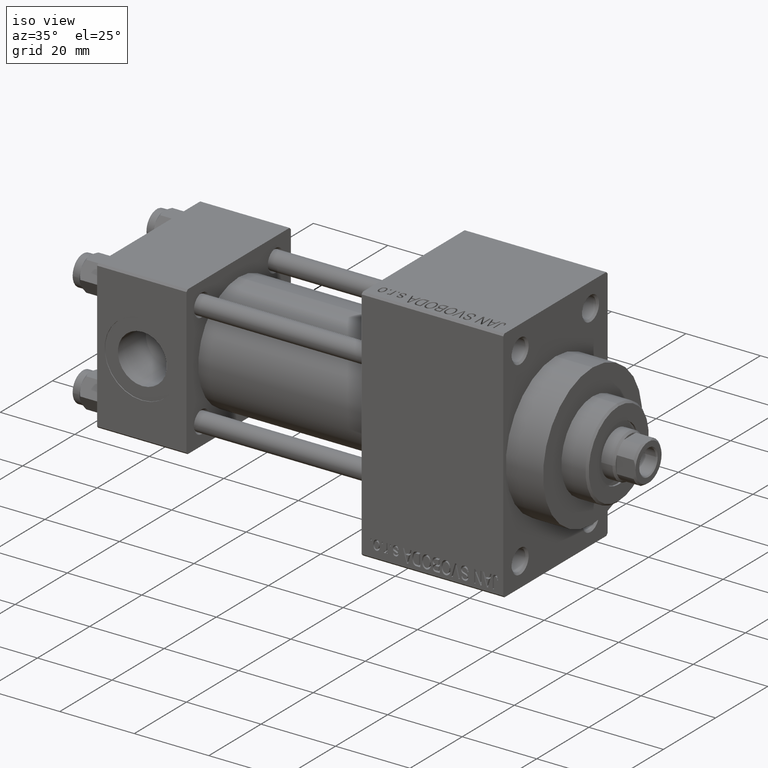
[diagram: clean part render]
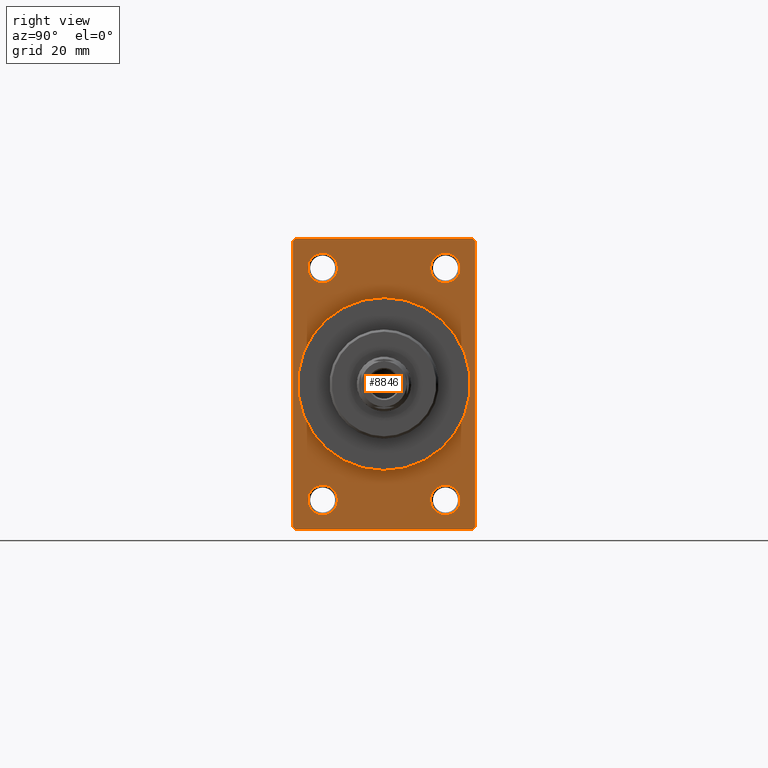
[diagram: tour spotlight — one face highlighted and labeled with its STEP entity id]
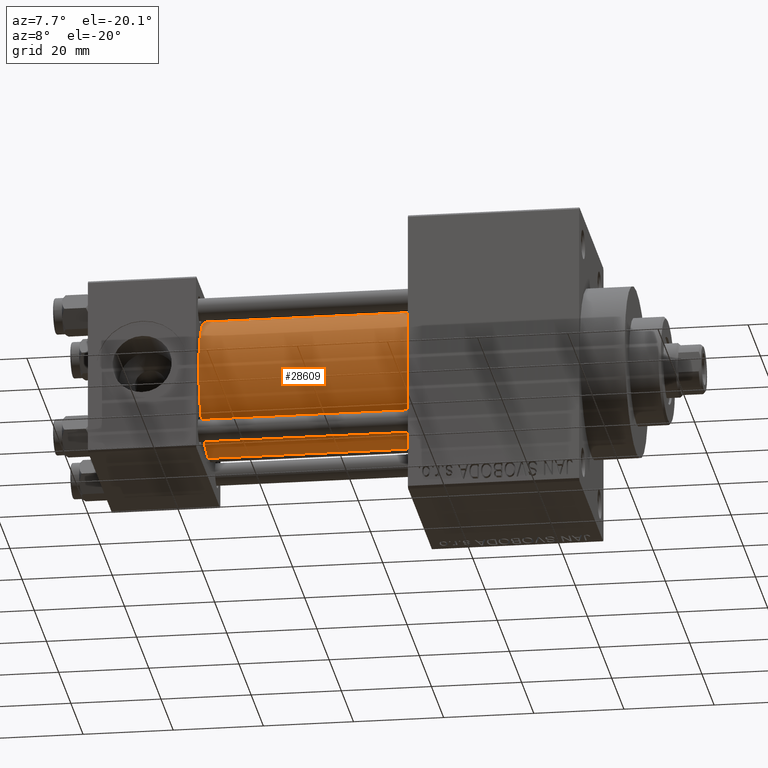
[diagram: tour spotlight — one face highlighted and labeled with its STEP entity id]
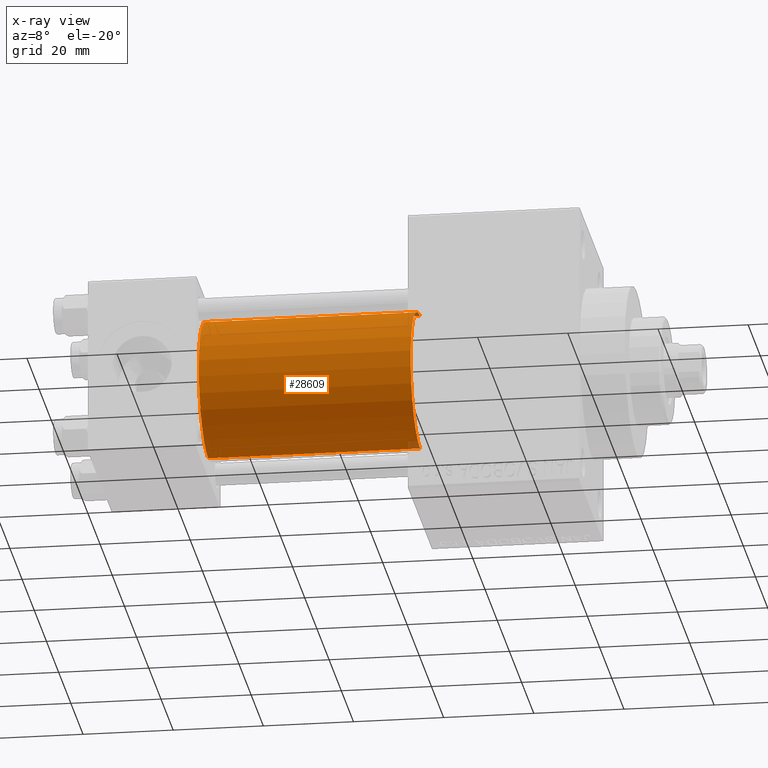
[diagram: x-ray of the same camera — body ghosted, this tour face saturated]
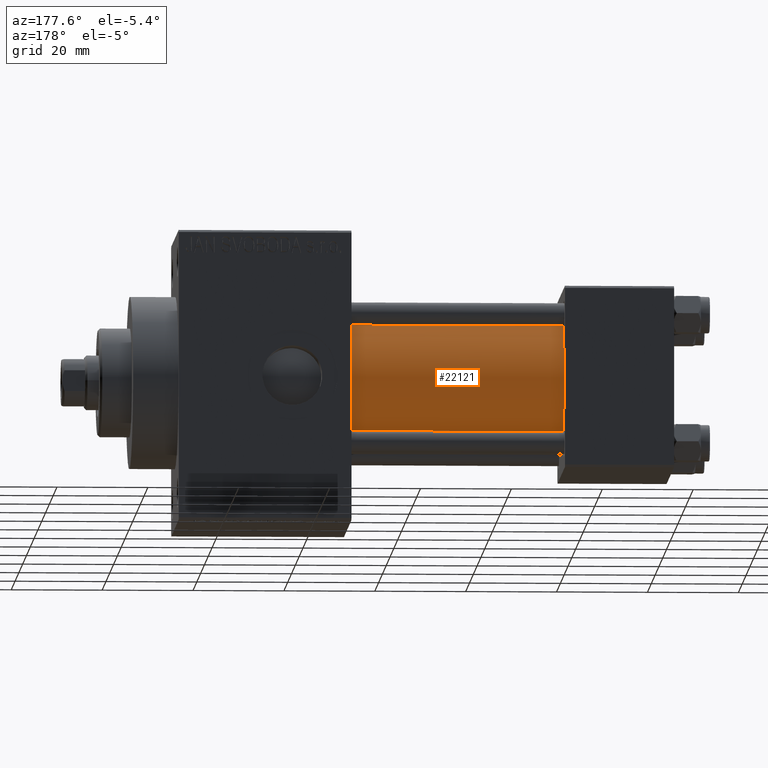
[diagram: tour spotlight — one face highlighted and labeled with its STEP entity id]
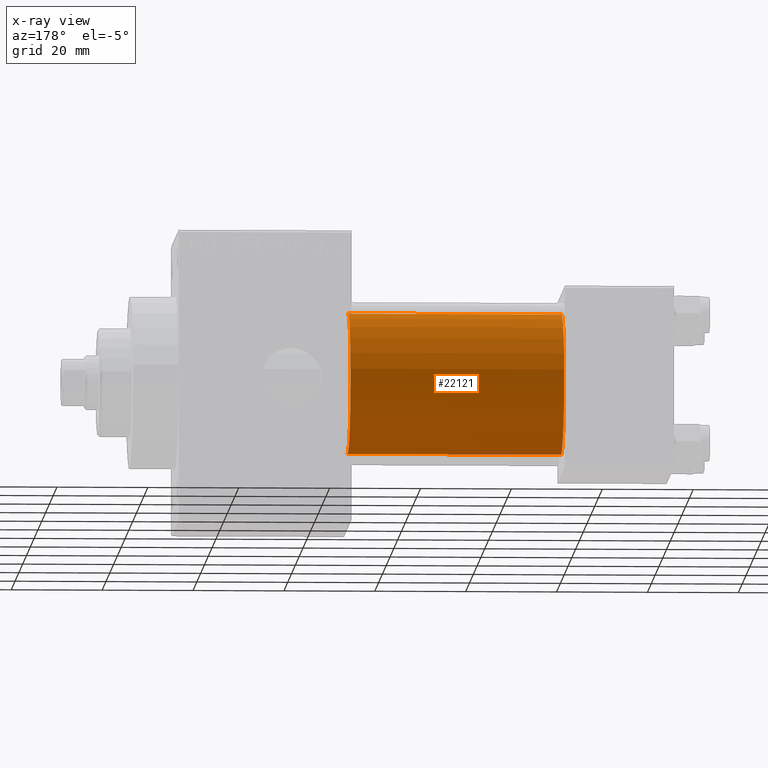
[diagram: x-ray of the same camera — body ghosted, this tour face saturated]
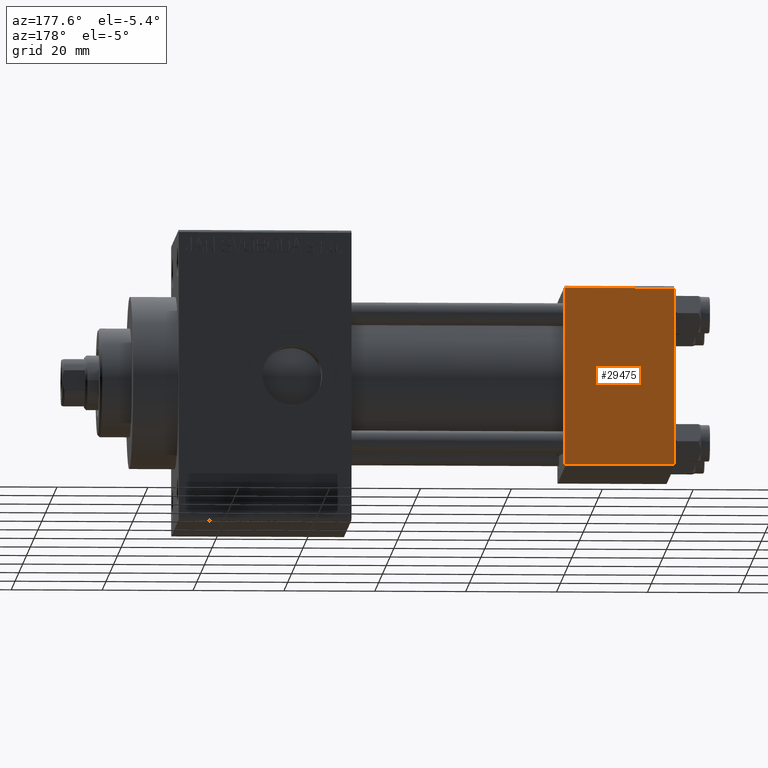
[diagram: tour spotlight — one face highlighted and labeled with its STEP entity id]
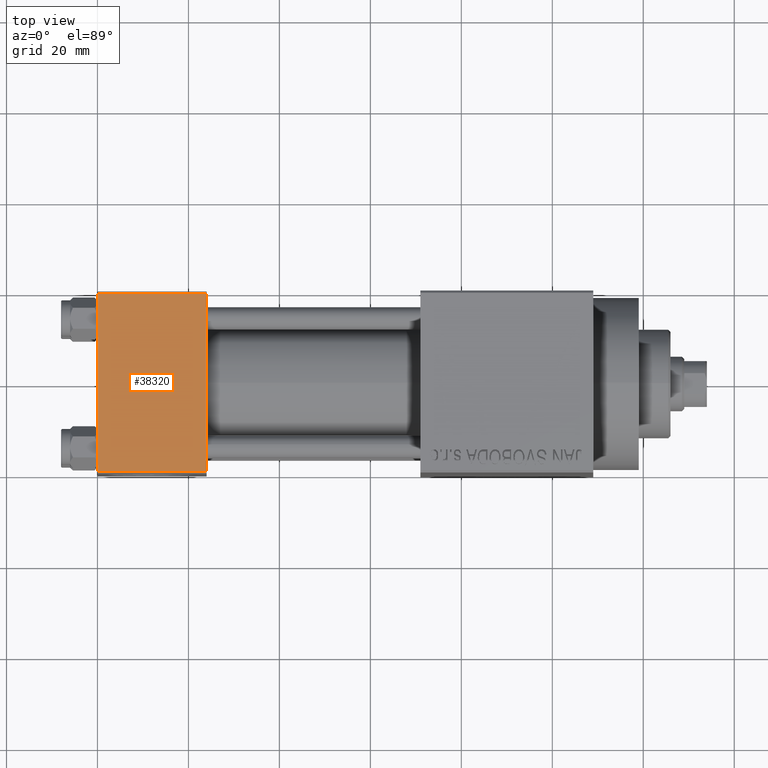
[diagram: tour spotlight — one face highlighted and labeled with its STEP entity id]
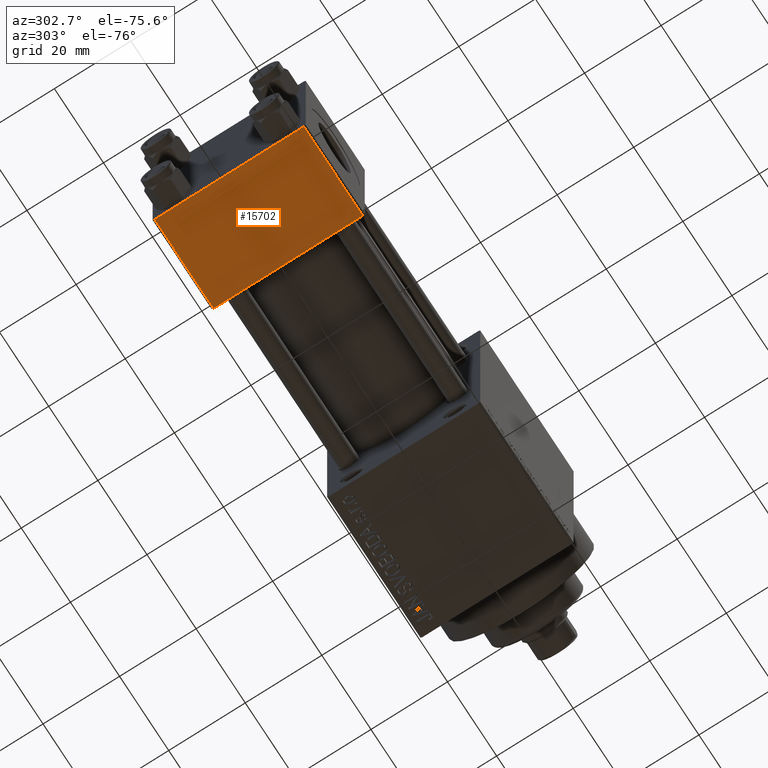
[diagram: tour spotlight — one face highlighted and labeled with its STEP entity id]
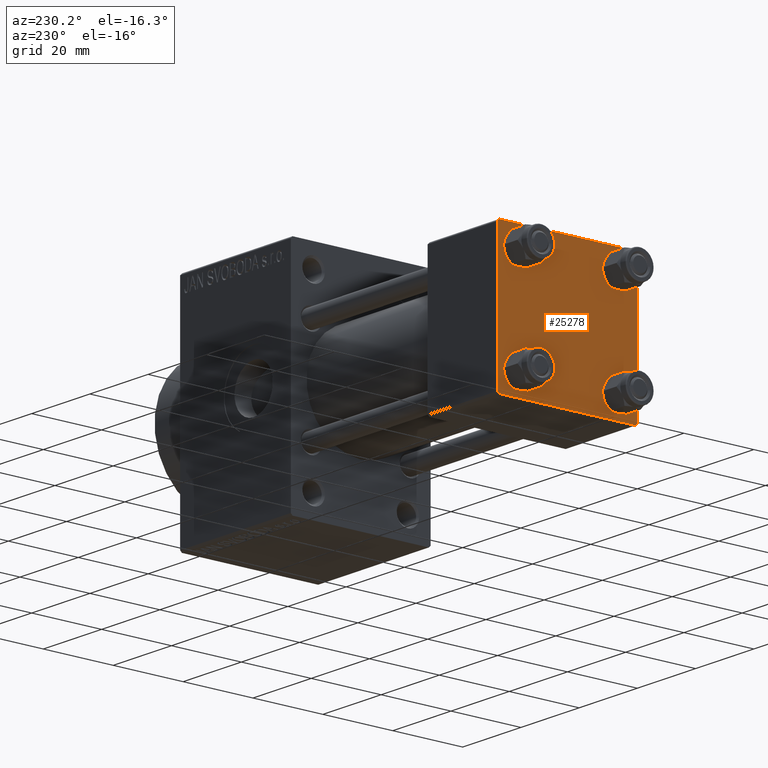
[diagram: tour spotlight — one face highlighted and labeled with its STEP entity id]
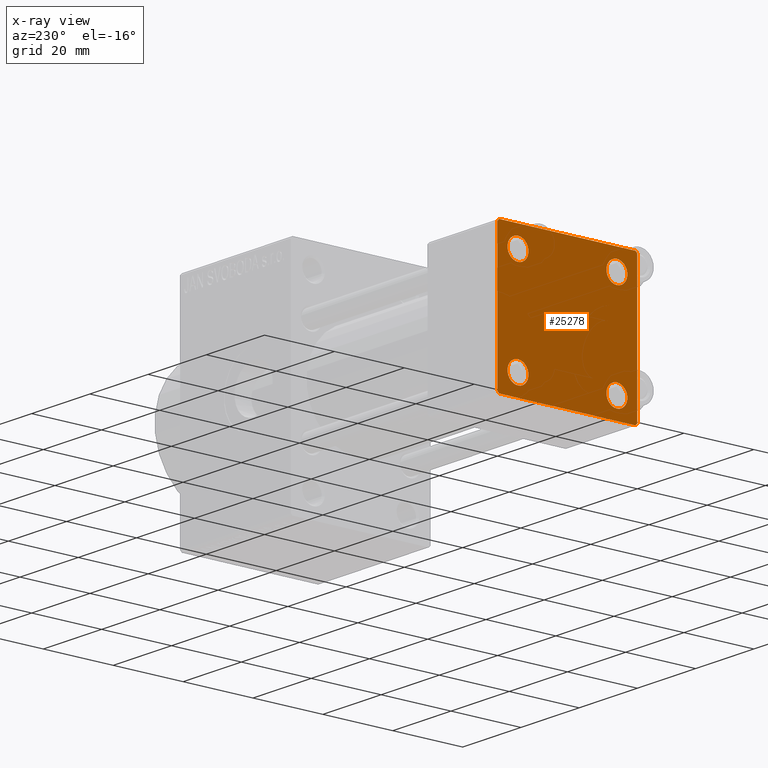
[diagram: x-ray of the same camera — body ghosted, this tour face saturated]
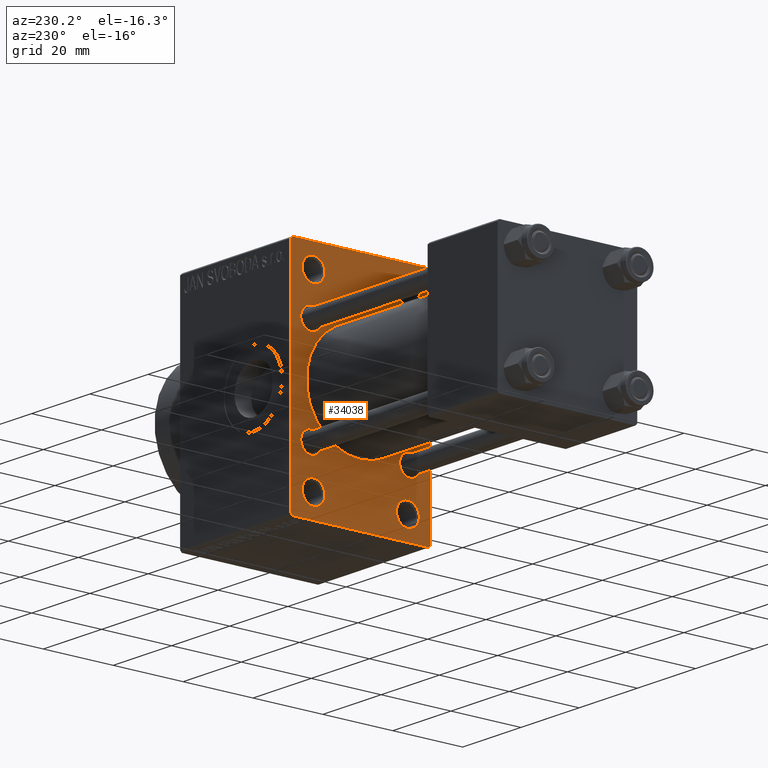
[diagram: tour spotlight — one face highlighted and labeled with its STEP entity id]
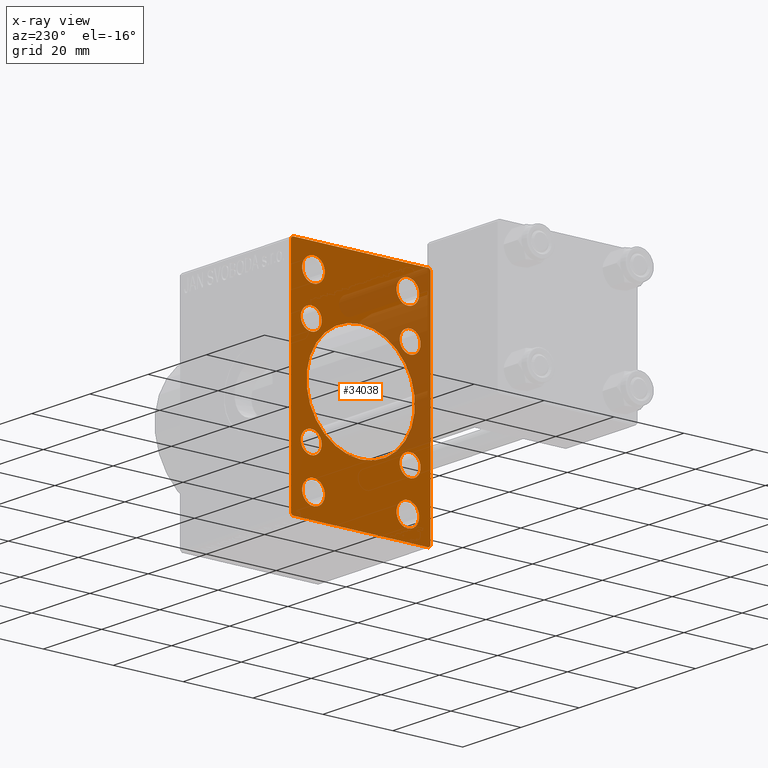
[diagram: x-ray of the same camera — body ghosted, this tour face saturated]
A machine part: a face-by-face anatomy tour. The part has 1103 B-rep faces; the first image is the clean iso view, then the 8 largest visible faces are spotlighted one at a time (largest first), each with its STEP entity span.

Face 1 — right view, entity #8846. In plain terms, the highlighted planar face has unit normal (-1, 0, 0).
Definition (entity closure, byte-faithful):
#664 = DIRECTION ( 'NONE',  ( 0.000000000000000000, 0.7071067811865426878, -0.7071067811865524577 ) ) ;
#741 = CARTESIAN_POINT ( 'NONE',  ( 109.0000000000000142, 13.49999999999999822, -28.75000000000000000 ) ) ;
#2030 = VERTEX_POINT ( 'NONE', #40661 ) ;
#2444 = EDGE_CURVE ( 'NONE', #18913, #12133, #8217, .T. ) ;
#2886 = EDGE_CURVE ( 'NONE', #29892, #24789, #24921, .T. ) ;
#2937 = DIRECTION ( 'NONE',  ( 0.000000000000000000, 0.000000000000000000, -1.000000000000000000 ) ) ;
#3214 = CARTESIAN_POINT ( 'NONE',  ( 109.0000000000000142, 19.49999999999998579, 32.00000000000000000 ) ) ;
#3372 = DIRECTION ( 'NONE',  ( -1.000000000000000000, -0.000000000000000000, -0.000000000000000000 ) ) ;
#3686 = CARTESIAN_POINT ( 'NONE',  ( 109.0000000000000142, 0.000000000000000000, 19.00000000000000000 ) ) ;
#4010 = CARTESIAN_POINT ( 'NONE',  ( 109.0000000000000142, -13.50000000000000533, -22.24999999999999289 ) ) ;
#4057 = ORIENTED_EDGE ( 'NONE', *, *, #42544, .T. ) ;
#4303 = CARTESIAN_POINT ( 'NONE',  ( 109.0000000000000142, -20.00000000000000000, 31.49999999999997868 ) ) ;
#4539 = FACE_BOUND ( 'NONE', #34568, .T. ) ;
#4618 = EDGE_LOOP ( 'NONE', ( #8742, #33187 ) ) ;
#5549 = DIRECTION ( 'NONE',  ( 0.000000000000000000, 0.000000000000000000, 1.000000000000000000 ) ) ;
#5797 = DIRECTION ( 'NONE',  ( 0.000000000000000000, 0.000000000000000000, 1.000000000000000000 ) ) ;
#6475 = CARTESIAN_POINT ( 'NONE',  ( 109.0000000000000142, -13.50000000000000178, 25.50000000000000355 ) ) ;
#6491 = ORIENTED_EDGE ( 'NONE', *, *, #29385, .T. ) ;
#6514 = CIRCLE ( 'NONE', #25491, 19.00000000000000000 ) ;
#6700 = CARTESIAN_POINT ( 'NONE',  ( 109.0000000000000142, -20.00000000000000000, 31.49999999999997868 ) ) ;
#6738 = DIRECTION ( 'NONE',  ( 1.000000000000000000, 0.000000000000000000, 0.000000000000000000 ) ) ;
#6778 = EDGE_LOOP ( 'NONE', ( #9270, #6491 ) ) ;
#7052 = DIRECTION ( 'NONE',  ( -1.000000000000000000, -0.000000000000000000, -0.000000000000000000 ) ) ;
#7079 = DIRECTION ( 'NONE',  ( 0.000000000000000000, 0.000000000000000000, -1.000000000000000000 ) ) ;
#7440 = CARTESIAN_POINT ( 'NONE',  ( 109.0000000000000142, 19.49999999999998579, -32.00000000000000000 ) ) ;
#7461 = AXIS2_PLACEMENT_3D ( 'NONE', #34355, #45785, #27677 ) ;
#7749 = DIRECTION ( 'NONE',  ( 0.000000000000000000, 0.000000000000000000, 1.000000000000000000 ) ) ;
#8183 = VERTEX_POINT ( 'NONE', #6700 ) ;
#8217 = CIRCLE ( 'NONE', #42443, 3.250000000000002665 ) ;
#8742 = ORIENTED_EDGE ( 'NONE', *, *, #39680, .T. ) ;
#8846 = ADVANCED_FACE ( 'NONE', ( #19515, #19048, #4539, #12395, #26183, #40709 ), #23079, .F. ) ;
#9232 = VERTEX_POINT ( 'NONE', #4010 ) ;
#9270 = ORIENTED_EDGE ( 'NONE', *, *, #24411, .T. ) ;
#9359 = DIRECTION ( 'NONE',  ( -1.000000000000000000, -0.000000000000000000, -0.000000000000000000 ) ) ;
#9510 = LINE ( 'NONE', #27585, #23647 ) ;
#9746 = DIRECTION ( 'NONE',  ( 0.000000000000000000, 0.000000000000000000, 1.000000000000000000 ) ) ;
#9874 = EDGE_CURVE ( 'NONE', #32086, #27499, #19057, .T. ) ;
#9897 = CARTESIAN_POINT ( 'NONE',  ( 109.0000000000000142, 13.49999999999999822, -25.50000000000000000 ) ) ;
#9980 = DIRECTION ( 'NONE',  ( 0.000000000000000000, -1.000000000000000000, -1.734723475976807094E-16 ) ) ;
#10588 = DIRECTION ( 'NONE',  ( 0.000000000000000000, 0.000000000000000000, 1.000000000000000000 ) ) ;
#11728 = EDGE_LOOP ( 'NONE', ( #45313, #4057, #25982, #39374, #31273, #28002, #29018, #31310 ) ) ;
#11969 = DIRECTION ( 'NONE',  ( 0.000000000000000000, 0.000000000000000000, -1.000000000000000000 ) ) ;
#12133 = VERTEX_POINT ( 'NONE', #32801 ) ;
#12156 = DIRECTION ( 'NONE',  ( -0.000000000000000000, 0.000000000000000000, 1.000000000000000000 ) ) ;
#12376 = VERTEX_POINT ( 'NONE', #46115 ) ;
#12395 = FACE_BOUND ( 'NONE', #4618, .T. ) ;
#12403 = DIRECTION ( 'NONE',  ( -0.000000000000000000, 0.7071067811865474617, 0.7071067811865474617 ) ) ;
#12483 = CIRCLE ( 'NONE', #45913, 3.250000000000002665 ) ;
#12733 = CARTESIAN_POINT ( 'NONE',  ( 109.0000000000000142, 19.49999999999998579, 32.00000000000000000 ) ) ;
#12952 = DIRECTION ( 'NONE',  ( -1.000000000000000000, -0.000000000000000000, -0.000000000000000000 ) ) ;
#13163 = EDGE_CURVE ( 'NONE', #32086, #2030, #27551, .T. ) ;
#13330 = VECTOR ( 'NONE', #7079, 1000.000000000000000 ) ;
#13849 = AXIS2_PLACEMENT_3D ( 'NONE', #43922, #40351, #7749 ) ;
#14157 = DIRECTION ( 'NONE',  ( -1.000000000000000000, -0.000000000000000000, -0.000000000000000000 ) ) ;
#14210 = CARTESIAN_POINT ( 'NONE',  ( 109.0000000000000142, -13.50000000000000178, 25.50000000000000355 ) ) ;
#14293 = VECTOR ( 'NONE', #664, 1000.000000000000000 ) ;
#14424 = VECTOR ( 'NONE', #12403, 1000.000000000000114 ) ;
#14456 = LINE ( 'NONE', #14925, #13330 ) ;
#14925 = CARTESIAN_POINT ( 'NONE',  ( 109.0000000000000142, -20.00000000000000000, 31.99999999999999289 ) ) ;
#15783 = CARTESIAN_POINT ( 'NONE',  ( 109.0000000000000142, 13.49999999999999822, 25.50000000000000355 ) ) ;
#16090 = EDGE_LOOP ( 'NONE', ( #37115, #26342 ) ) ;
#16473 = AXIS2_PLACEMENT_3D ( 'NONE', #15783, #9359, #5549 ) ;
#16840 = CARTESIAN_POINT ( 'NONE',  ( 109.0000000000000142, 20.00000000000000000, -32.00000000000000000 ) ) ;
#17704 = VERTEX_POINT ( 'NONE', #3686 ) ;
#18264 = VERTEX_POINT ( 'NONE', #39526 ) ;
#18580 = DIRECTION ( 'NONE',  ( -1.000000000000000000, 0.000000000000000000, -0.000000000000000000 ) ) ;
#18913 = VERTEX_POINT ( 'NONE', #37188 ) ;
#19048 = FACE_BOUND ( 'NONE', #6778, .T. ) ;
#19057 = LINE ( 'NONE', #44759, #14424 ) ;
#19515 = FACE_BOUND ( 'NONE', #28727, .T. ) ;
#20507 = CARTESIAN_POINT ( 'NONE',  ( 109.0000000000000142, 13.49999999999999822, 22.25000000000004263 ) ) ;
#21208 = AXIS2_PLACEMENT_3D ( 'NONE', #29765, #18580, #12156 ) ;
#22275 = ORIENTED_EDGE ( 'NONE', *, *, #34320, .T. ) ;
#22363 = AXIS2_PLACEMENT_3D ( 'NONE', #31266, #12952, #5797 ) ;
#22452 = CARTESIAN_POINT ( 'NONE',  ( 109.0000000000000142, 2.326828918379970970E-15, -19.00000000000000000 ) ) ;
#22883 = VERTEX_POINT ( 'NONE', #12733 ) ;
#23070 = EDGE_CURVE ( 'NONE', #22883, #32673, #9510, .T. ) ;
#23079 = PLANE ( 'NONE',  #21208 ) ;
#23647 = VECTOR ( 'NONE', #9980, 1000.000000000000000 ) ;
#23698 = EDGE_CURVE ( 'NONE', #27169, #27499, #30521, .T. ) ;
#24165 = DIRECTION ( 'NONE',  ( 0.000000000000000000, -0.7071067811865474617, 0.7071067811865474617 ) ) ;
#24411 = EDGE_CURVE ( 'NONE', #25079, #9232, #40424, .T. ) ;
#24557 = LINE ( 'NONE', #4303, #35874 ) ;
#24789 = VERTEX_POINT ( 'NONE', #20507 ) ;
#24921 = CIRCLE ( 'NONE', #31031, 3.249999999999961364 ) ;
#25079 = VERTEX_POINT ( 'NONE', #46636 ) ;
#25357 = EDGE_CURVE ( 'NONE', #12133, #18913, #45023, .T. ) ;
#25424 = EDGE_CURVE ( 'NONE', #32673, #8183, #24557, .T. ) ;
#25431 = CARTESIAN_POINT ( 'NONE',  ( 109.0000000000000142, 13.49999999999999822, 28.74999999999996803 ) ) ;
#25491 = AXIS2_PLACEMENT_3D ( 'NONE', #35535, #6738, #2937 ) ;
#25578 = CIRCLE ( 'NONE', #7461, 19.00000000000000000 ) ;
#25627 = CARTESIAN_POINT ( 'NONE',  ( 109.0000000000000142, -19.49999999999998579, 31.99999999999999289 ) ) ;
#25843 = DIRECTION ( 'NONE',  ( -1.000000000000000000, -0.000000000000000000, -0.000000000000000000 ) ) ;
#25982 = ORIENTED_EDGE ( 'NONE', *, *, #13163, .F. ) ;
#26183 = FACE_BOUND ( 'NONE', #16090, .T. ) ;
#26342 = ORIENTED_EDGE ( 'NONE', *, *, #37542, .F. ) ;
#26686 = VECTOR ( 'NONE', #27778, 1000.000000000000000 ) ;
#27169 = VERTEX_POINT ( 'NONE', #30611 ) ;
#27499 = VERTEX_POINT ( 'NONE', #36928 ) ;
#27551 = LINE ( 'NONE', #16840, #26686 ) ;
#27585 = CARTESIAN_POINT ( 'NONE',  ( 109.0000000000000142, 20.00000000000000000, 32.00000000000000000 ) ) ;
#27677 = DIRECTION ( 'NONE',  ( 0.000000000000000000, 0.000000000000000000, -1.000000000000000000 ) ) ;
#27778 = DIRECTION ( 'NONE',  ( 0.000000000000000000, -1.000000000000000000, 0.000000000000000000 ) ) ;
#28002 = ORIENTED_EDGE ( 'NONE', *, *, #33919, .T. ) ;
#28216 = LINE ( 'NONE', #3214, #45185 ) ;
#28727 = EDGE_LOOP ( 'NONE', ( #33971, #35071 ) ) ;
#29018 = ORIENTED_EDGE ( 'NONE', *, *, #23070, .T. ) ;
#29385 = EDGE_CURVE ( 'NONE', #9232, #25079, #32982, .T. ) ;
#29579 = EDGE_CURVE ( 'NONE', #40496, #12376, #12483, .T. ) ;
#29765 = CARTESIAN_POINT ( 'NONE',  ( 109.0000000000000142, 0.000000000000000000, 0.000000000000000000 ) ) ;
#29892 = VERTEX_POINT ( 'NONE', #25431 ) ;
#30170 = LINE ( 'NONE', #33270, #14293 ) ;
#30521 = LINE ( 'NONE', #41464, #45710 ) ;
#30596 = VERTEX_POINT ( 'NONE', #22452 ) ;
#30611 = CARTESIAN_POINT ( 'NONE',  ( 109.0000000000000142, 20.00000000000000000, 31.49999999999998579 ) ) ;
#31031 = AXIS2_PLACEMENT_3D ( 'NONE', #45455, #47015, #9746 ) ;
#31266 = CARTESIAN_POINT ( 'NONE',  ( 109.0000000000000142, 13.49999999999999822, -25.50000000000000000 ) ) ;
#31273 = ORIENTED_EDGE ( 'NONE', *, *, #23698, .F. ) ;
#31310 = ORIENTED_EDGE ( 'NONE', *, *, #25424, .T. ) ;
#32086 = VERTEX_POINT ( 'NONE', #7440 ) ;
#32525 = DIRECTION ( 'NONE',  ( 0.000000000000000000, 0.000000000000000000, 1.000000000000000000 ) ) ;
#32673 = VERTEX_POINT ( 'NONE', #25627 ) ;
#32801 = CARTESIAN_POINT ( 'NONE',  ( 109.0000000000000142, -13.50000000000000178, 28.75000000000000355 ) ) ;
#32982 = CIRCLE ( 'NONE', #42096, 3.250000000000002665 ) ;
#33187 = ORIENTED_EDGE ( 'NONE', *, *, #2886, .T. ) ;
#33270 = CARTESIAN_POINT ( 'NONE',  ( 109.0000000000000142, -19.49999999999998579, -32.00000000000000000 ) ) ;
#33919 = EDGE_CURVE ( 'NONE', #27169, #22883, #28216, .T. ) ;
#33971 = ORIENTED_EDGE ( 'NONE', *, *, #2444, .T. ) ;
#34320 = EDGE_CURVE ( 'NONE', #12376, #40496, #38336, .T. ) ;
#34355 = CARTESIAN_POINT ( 'NONE',  ( 109.0000000000000142, 0.000000000000000000, 0.000000000000000000 ) ) ;
#34568 = EDGE_LOOP ( 'NONE', ( #44659, #22275 ) ) ;
#35071 = ORIENTED_EDGE ( 'NONE', *, *, #25357, .T. ) ;
#35505 = DIRECTION ( 'NONE',  ( 0.000000000000000000, 0.000000000000000000, 1.000000000000000000 ) ) ;
#35535 = CARTESIAN_POINT ( 'NONE',  ( 109.0000000000000142, 0.000000000000000000, 0.000000000000000000 ) ) ;
#35874 = VECTOR ( 'NONE', #44054, 1000.000000000000114 ) ;
#35974 = EDGE_CURVE ( 'NONE', #8183, #18264, #14456, .T. ) ;
#36928 = CARTESIAN_POINT ( 'NONE',  ( 109.0000000000000142, 20.00000000000000000, -31.49999999999998579 ) ) ;
#37115 = ORIENTED_EDGE ( 'NONE', *, *, #43968, .F. ) ;
#37188 = CARTESIAN_POINT ( 'NONE',  ( 109.0000000000000142, -13.50000000000000178, 22.25000000000000000 ) ) ;
#37542 = EDGE_CURVE ( 'NONE', #30596, #17704, #6514, .T. ) ;
#38336 = CIRCLE ( 'NONE', #22363, 3.250000000000002665 ) ;
#38956 = AXIS2_PLACEMENT_3D ( 'NONE', #6475, #3372, #35505 ) ;
#39374 = ORIENTED_EDGE ( 'NONE', *, *, #9874, .T. ) ;
#39526 = CARTESIAN_POINT ( 'NONE',  ( 109.0000000000000142, -20.00000000000000000, -31.49999999999997868 ) ) ;
#39680 = EDGE_CURVE ( 'NONE', #24789, #29892, #43066, .T. ) ;
#40351 = DIRECTION ( 'NONE',  ( -1.000000000000000000, -0.000000000000000000, -0.000000000000000000 ) ) ;
#40424 = CIRCLE ( 'NONE', #13849, 3.250000000000002665 ) ;
#40496 = VERTEX_POINT ( 'NONE', #741 ) ;
#40661 = CARTESIAN_POINT ( 'NONE',  ( 109.0000000000000142, -19.49999999999998579, -32.00000000000000000 ) ) ;
#40709 = FACE_OUTER_BOUND ( 'NONE', #11728, .T. ) ;
#41464 = CARTESIAN_POINT ( 'NONE',  ( 109.0000000000000142, 20.00000000000000000, 32.00000000000000000 ) ) ;
#42096 = AXIS2_PLACEMENT_3D ( 'NONE', #46581, #7052, #46358 ) ;
#42443 = AXIS2_PLACEMENT_3D ( 'NONE', #14210, #25843, #32525 ) ;
#42544 = EDGE_CURVE ( 'NONE', #18264, #2030, #30170, .T. ) ;
#43066 = CIRCLE ( 'NONE', #16473, 3.249999999999961364 ) ;
#43922 = CARTESIAN_POINT ( 'NONE',  ( 109.0000000000000142, -13.50000000000000533, -25.49999999999999645 ) ) ;
#43968 = EDGE_CURVE ( 'NONE', #17704, #30596, #25578, .T. ) ;
#44054 = DIRECTION ( 'NONE',  ( -0.000000000000000000, -0.7071067811865474617, -0.7071067811865474617 ) ) ;
#44659 = ORIENTED_EDGE ( 'NONE', *, *, #29579, .T. ) ;
#44759 = CARTESIAN_POINT ( 'NONE',  ( 109.0000000000000142, 20.00000000000000000, -31.49999999999998579 ) ) ;
#45023 = CIRCLE ( 'NONE', #38956, 3.250000000000002665 ) ;
#45185 = VECTOR ( 'NONE', #24165, 1000.000000000000114 ) ;
#45313 = ORIENTED_EDGE ( 'NONE', *, *, #35974, .T. ) ;
#45455 = CARTESIAN_POINT ( 'NONE',  ( 109.0000000000000142, 13.49999999999999822, 25.50000000000000355 ) ) ;
#45710 = VECTOR ( 'NONE', #11969, 1000.000000000000000 ) ;
#45785 = DIRECTION ( 'NONE',  ( 1.000000000000000000, 0.000000000000000000, 0.000000000000000000 ) ) ;
#45913 = AXIS2_PLACEMENT_3D ( 'NONE', #9897, #14157, #10588 ) ;
#46115 = CARTESIAN_POINT ( 'NONE',  ( 109.0000000000000142, 13.49999999999999822, -22.24999999999999645 ) ) ;
#46358 = DIRECTION ( 'NONE',  ( 0.000000000000000000, 0.000000000000000000, 1.000000000000000000 ) ) ;
#46581 = CARTESIAN_POINT ( 'NONE',  ( 109.0000000000000142, -13.50000000000000533, -25.49999999999999645 ) ) ;
#46636 = CARTESIAN_POINT ( 'NONE',  ( 109.0000000000000142, -13.50000000000000533, -28.74999999999999645 ) ) ;
#47015 = DIRECTION ( 'NONE',  ( -1.000000000000000000, -0.000000000000000000, -0.000000000000000000 ) ) ;

Face 2 — auxiliary view, entity #28609. An x-ray twin of the same camera follows (body ghosted, this face saturated) — the face is partly hidden behind the body. In plain terms, the highlighted cylindrical surface (partial cylindrical patch) has radius 15.5 mm, axis along (-1, -0, -0).
Definition (entity closure, byte-faithful):
#1941 = CIRCLE ( 'NONE', #28522, 15.50000000000000000 ) ;
#4226 = EDGE_CURVE ( 'NONE', #32677, #4966, #25577, .T. ) ;
#4966 = VERTEX_POINT ( 'NONE', #26590 ) ;
#5310 = DIRECTION ( 'NONE',  ( -1.000000000000000000, -0.000000000000000000, -0.000000000000000000 ) ) ;
#5555 = LINE ( 'NONE', #20053, #22908 ) ;
#7556 = CARTESIAN_POINT ( 'NONE',  ( 71.00000000000001421, -7.038826752868131828E-16, -15.50000000000000000 ) ) ;
#9425 = AXIS2_PLACEMENT_3D ( 'NONE', #12454, #5310, #37686 ) ;
#9902 = DIRECTION ( 'NONE',  ( 1.000000000000000000, 0.000000000000000000, 0.000000000000000000 ) ) ;
#11890 = CARTESIAN_POINT ( 'NONE',  ( 71.00000000000001421, -2.602085213965210642E-15, 15.50000000000000000 ) ) ;
#12454 = CARTESIAN_POINT ( 'NONE',  ( 71.00000000000001421, -2.602085213965210642E-15, 0.000000000000000000 ) ) ;
#13738 = EDGE_CURVE ( 'NONE', #32500, #27535, #5555, .T. ) ;
#20053 = CARTESIAN_POINT ( 'NONE',  ( 71.00000000000001421, -2.602085213965210642E-15, 15.50000000000000000 ) ) ;
#21736 = EDGE_LOOP ( 'NONE', ( #44334, #39111, #46762, #22914 ) ) ;
#22908 = VECTOR ( 'NONE', #41253, 1000.000000000000000 ) ;
#22914 = ORIENTED_EDGE ( 'NONE', *, *, #36766, .T. ) ;
#25577 = LINE ( 'NONE', #44160, #43990 ) ;
#26590 = CARTESIAN_POINT ( 'NONE',  ( 24.00000000000000000, -7.038826752868131828E-16, -15.50000000000000000 ) ) ;
#26677 = CARTESIAN_POINT ( 'NONE',  ( 24.00000000000000000, -2.602085213965210642E-15, 15.50000000000000000 ) ) ;
#27157 = CARTESIAN_POINT ( 'NONE',  ( 24.00000000000000000, -2.602085213965210642E-15, 0.000000000000000000 ) ) ;
#27535 = VERTEX_POINT ( 'NONE', #26677 ) ;
#28522 = AXIS2_PLACEMENT_3D ( 'NONE', #27157, #34307, #31211 ) ;
#28609 = ADVANCED_FACE ( 'NONE', ( #45049 ), #41240, .T. ) ;
#30342 = AXIS2_PLACEMENT_3D ( 'NONE', #38704, #9902, #45844 ) ;
#31211 = DIRECTION ( 'NONE',  ( 0.000000000000000000, 0.000000000000000000, 1.000000000000000000 ) ) ;
#32500 = VERTEX_POINT ( 'NONE', #11890 ) ;
#32677 = VERTEX_POINT ( 'NONE', #7556 ) ;
#34116 = CIRCLE ( 'NONE', #30342, 15.50000000000000000 ) ;
#34307 = DIRECTION ( 'NONE',  ( 1.000000000000000000, 0.000000000000000000, 0.000000000000000000 ) ) ;
#36766 = EDGE_CURVE ( 'NONE', #27535, #4966, #1941, .T. ) ;
#37686 = DIRECTION ( 'NONE',  ( 0.000000000000000000, 0.000000000000000000, 1.000000000000000000 ) ) ;
#38704 = CARTESIAN_POINT ( 'NONE',  ( 71.00000000000001421, -2.602085213965210642E-15, 0.000000000000000000 ) ) ;
#39111 = ORIENTED_EDGE ( 'NONE', *, *, #46768, .F. ) ;
#41240 = CYLINDRICAL_SURFACE ( 'NONE', #9425, 15.50000000000000000 ) ;
#41253 = DIRECTION ( 'NONE',  ( -1.000000000000000000, -0.000000000000000000, -0.000000000000000000 ) ) ;
#43919 = DIRECTION ( 'NONE',  ( -1.000000000000000000, -0.000000000000000000, -0.000000000000000000 ) ) ;
#43990 = VECTOR ( 'NONE', #43919, 1000.000000000000000 ) ;
#44160 = CARTESIAN_POINT ( 'NONE',  ( 71.00000000000001421, -7.038826752868131828E-16, -15.50000000000000000 ) ) ;
#44334 = ORIENTED_EDGE ( 'NONE', *, *, #4226, .F. ) ;
#45049 = FACE_OUTER_BOUND ( 'NONE', #21736, .T. ) ;
#45844 = DIRECTION ( 'NONE',  ( 0.000000000000000000, 0.000000000000000000, -1.000000000000000000 ) ) ;
#46762 = ORIENTED_EDGE ( 'NONE', *, *, #13738, .T. ) ;
#46768 = EDGE_CURVE ( 'NONE', #32500, #32677, #34116, .T. ) ;

Face 3 — auxiliary view, entity #22121. An x-ray twin of the same camera follows (body ghosted, this face saturated) — the face is partly hidden behind the body. In plain terms, the highlighted cylindrical surface (partial cylindrical patch) has radius 15.5 mm, axis along (-1, -0, -0).
Definition (entity closure, byte-faithful):
#402 = ORIENTED_EDGE ( 'NONE', *, *, #46780, .T. ) ;
#2285 = DIRECTION ( 'NONE',  ( 1.000000000000000000, 0.000000000000000000, 0.000000000000000000 ) ) ;
#3925 = FACE_OUTER_BOUND ( 'NONE', #28313, .T. ) ;
#4226 = EDGE_CURVE ( 'NONE', #32677, #4966, #25577, .T. ) ;
#4966 = VERTEX_POINT ( 'NONE', #26590 ) ;
#5555 = LINE ( 'NONE', #20053, #22908 ) ;
#5660 = CIRCLE ( 'NONE', #23890, 15.50000000000000000 ) ;
#7556 = CARTESIAN_POINT ( 'NONE',  ( 71.00000000000001421, -7.038826752868131828E-16, -15.50000000000000000 ) ) ;
#8433 = DIRECTION ( 'NONE',  ( 0.000000000000000000, 0.000000000000000000, -1.000000000000000000 ) ) ;
#11724 = ORIENTED_EDGE ( 'NONE', *, *, #4226, .T. ) ;
#11890 = CARTESIAN_POINT ( 'NONE',  ( 71.00000000000001421, -2.602085213965210642E-15, 15.50000000000000000 ) ) ;
#13738 = EDGE_CURVE ( 'NONE', #32500, #27535, #5555, .T. ) ;
#17807 = EDGE_CURVE ( 'NONE', #32677, #32500, #5660, .T. ) ;
#19377 = DIRECTION ( 'NONE',  ( 0.000000000000000000, 0.000000000000000000, 1.000000000000000000 ) ) ;
#20053 = CARTESIAN_POINT ( 'NONE',  ( 71.00000000000001421, -2.602085213965210642E-15, 15.50000000000000000 ) ) ;
#22121 = ADVANCED_FACE ( 'NONE', ( #3925 ), #44385, .T. ) ;
#22908 = VECTOR ( 'NONE', #41253, 1000.000000000000000 ) ;
#23890 = AXIS2_PLACEMENT_3D ( 'NONE', #26503, #41034, #8433 ) ;
#24997 = AXIS2_PLACEMENT_3D ( 'NONE', #34879, #2285, #46076 ) ;
#25577 = LINE ( 'NONE', #44160, #43990 ) ;
#26277 = CARTESIAN_POINT ( 'NONE',  ( 71.00000000000001421, -2.602085213965210642E-15, 0.000000000000000000 ) ) ;
#26503 = CARTESIAN_POINT ( 'NONE',  ( 71.00000000000001421, -2.602085213965210642E-15, 0.000000000000000000 ) ) ;
#26590 = CARTESIAN_POINT ( 'NONE',  ( 24.00000000000000000, -7.038826752868131828E-16, -15.50000000000000000 ) ) ;
#26677 = CARTESIAN_POINT ( 'NONE',  ( 24.00000000000000000, -2.602085213965210642E-15, 15.50000000000000000 ) ) ;
#27535 = VERTEX_POINT ( 'NONE', #26677 ) ;
#28313 = EDGE_LOOP ( 'NONE', ( #45711, #11724, #402, #43598 ) ) ;
#29381 = DIRECTION ( 'NONE',  ( -1.000000000000000000, -0.000000000000000000, -0.000000000000000000 ) ) ;
#32500 = VERTEX_POINT ( 'NONE', #11890 ) ;
#32677 = VERTEX_POINT ( 'NONE', #7556 ) ;
#34286 = AXIS2_PLACEMENT_3D ( 'NONE', #26277, #29381, #19377 ) ;
#34879 = CARTESIAN_POINT ( 'NONE',  ( 24.00000000000000000, -2.602085213965210642E-15, 0.000000000000000000 ) ) ;
#39453 = CIRCLE ( 'NONE', #24997, 15.50000000000000000 ) ;
#41034 = DIRECTION ( 'NONE',  ( 1.000000000000000000, 0.000000000000000000, 0.000000000000000000 ) ) ;
#41253 = DIRECTION ( 'NONE',  ( -1.000000000000000000, -0.000000000000000000, -0.000000000000000000 ) ) ;
#43598 = ORIENTED_EDGE ( 'NONE', *, *, #13738, .F. ) ;
#43919 = DIRECTION ( 'NONE',  ( -1.000000000000000000, -0.000000000000000000, -0.000000000000000000 ) ) ;
#43990 = VECTOR ( 'NONE', #43919, 1000.000000000000000 ) ;
#44160 = CARTESIAN_POINT ( 'NONE',  ( 71.00000000000001421, -7.038826752868131828E-16, -15.50000000000000000 ) ) ;
#44385 = CYLINDRICAL_SURFACE ( 'NONE', #34286, 15.50000000000000000 ) ;
#45711 = ORIENTED_EDGE ( 'NONE', *, *, #17807, .F. ) ;
#46076 = DIRECTION ( 'NONE',  ( 0.000000000000000000, 0.000000000000000000, 1.000000000000000000 ) ) ;
#46780 = EDGE_CURVE ( 'NONE', #4966, #27535, #39453, .T. ) ;

Face 4 — auxiliary view, entity #29475. In plain terms, the highlighted planar face has unit normal (0, 1, 0).
Definition (entity closure, byte-faithful):
#220 = DIRECTION ( 'NONE',  ( 0.000000000000000000, 0.000000000000000000, -1.000000000000000000 ) ) ;
#307 = CARTESIAN_POINT ( 'NONE',  ( 0.000000000000000000, 20.00000000000000000, 20.00000000000000000 ) ) ;
#858 = CARTESIAN_POINT ( 'NONE',  ( 24.00000000000000000, 20.00000000000000000, 19.49999999999999289 ) ) ;
#1053 = AXIS2_PLACEMENT_3D ( 'NONE', #38230, #32005, #10128 ) ;
#1619 = LINE ( 'NONE', #42074, #10108 ) ;
#4070 = VECTOR ( 'NONE', #18636, 1000.000000000000000 ) ;
#4719 = CARTESIAN_POINT ( 'NONE',  ( 0.000000000000000000, 20.00000000000000000, -19.50000000000002132 ) ) ;
#10108 = VECTOR ( 'NONE', #38517, 1000.000000000000000 ) ;
#10128 = DIRECTION ( 'NONE',  ( 0.000000000000000000, -0.000000000000000000, 1.000000000000000000 ) ) ;
#11420 = LINE ( 'NONE', #18318, #20097 ) ;
#12522 = FACE_OUTER_BOUND ( 'NONE', #46672, .T. ) ;
#15938 = VECTOR ( 'NONE', #18319, 1000.000000000000000 ) ;
#16455 = ORIENTED_EDGE ( 'NONE', *, *, #28595, .F. ) ;
#17994 = CARTESIAN_POINT ( 'NONE',  ( 0.000000000000000000, 20.00000000000000000, 19.49999999999999289 ) ) ;
#18254 = CARTESIAN_POINT ( 'NONE',  ( 24.00000000000000000, 20.00000000000000000, -19.50000000000002132 ) ) ;
#18318 = CARTESIAN_POINT ( 'NONE',  ( 24.00000000000000000, 20.00000000000000000, 20.00000000000000000 ) ) ;
#18319 = DIRECTION ( 'NONE',  ( -1.000000000000000000, 0.000000000000000000, 0.000000000000000000 ) ) ;
#18333 = EDGE_CURVE ( 'NONE', #36925, #25765, #21874, .T. ) ;
#18636 = DIRECTION ( 'NONE',  ( 0.000000000000000000, 0.000000000000000000, -1.000000000000000000 ) ) ;
#20097 = VECTOR ( 'NONE', #220, 1000.000000000000000 ) ;
#21258 = LINE ( 'NONE', #307, #4070 ) ;
#21874 = LINE ( 'NONE', #47129, #15938 ) ;
#22239 = ORIENTED_EDGE ( 'NONE', *, *, #29208, .T. ) ;
#25765 = VERTEX_POINT ( 'NONE', #4719 ) ;
#27019 = PLANE ( 'NONE',  #1053 ) ;
#28595 = EDGE_CURVE ( 'NONE', #43449, #25765, #21258, .T. ) ;
#29208 = EDGE_CURVE ( 'NONE', #43449, #30191, #1619, .T. ) ;
#29475 = ADVANCED_FACE ( 'NONE', ( #12522 ), #27019, .T. ) ;
#30191 = VERTEX_POINT ( 'NONE', #858 ) ;
#32005 = DIRECTION ( 'NONE',  ( -0.000000000000000000, 1.000000000000000000, 0.000000000000000000 ) ) ;
#35541 = EDGE_CURVE ( 'NONE', #30191, #36925, #11420, .T. ) ;
#36925 = VERTEX_POINT ( 'NONE', #18254 ) ;
#38230 = CARTESIAN_POINT ( 'NONE',  ( 24.00000000000000000, 20.00000000000000000, 20.00000000000000000 ) ) ;
#38517 = DIRECTION ( 'NONE',  ( 1.000000000000000000, 0.000000000000000000, 0.000000000000000000 ) ) ;
#41518 = ORIENTED_EDGE ( 'NONE', *, *, #18333, .T. ) ;
#42074 = CARTESIAN_POINT ( 'NONE',  ( 24.00000000000000000, 20.00000000000000000, 19.49999999999999289 ) ) ;
#42747 = ORIENTED_EDGE ( 'NONE', *, *, #35541, .T. ) ;
#43449 = VERTEX_POINT ( 'NONE', #17994 ) ;
#46672 = EDGE_LOOP ( 'NONE', ( #42747, #41518, #16455, #22239 ) ) ;
#47129 = CARTESIAN_POINT ( 'NONE',  ( 24.00000000000000000, 20.00000000000000000, -19.50000000000002132 ) ) ;

Face 5 — top view, entity #38320. In plain terms, the highlighted planar face has unit normal (0, 0, -1).
Definition (entity closure, byte-faithful):
#51 = FACE_OUTER_BOUND ( 'NONE', #44187, .T. ) ;
#1453 = VECTOR ( 'NONE', #32273, 1000.000000000000000 ) ;
#4023 = CARTESIAN_POINT ( 'NONE',  ( 0.000000000000000000, 19.50000000000000000, 20.00000000000000000 ) ) ;
#4263 = EDGE_CURVE ( 'NONE', #11136, #18819, #11560, .T. ) ;
#5306 = ORIENTED_EDGE ( 'NONE', *, *, #19533, .T. ) ;
#6145 = LINE ( 'NONE', #16622, #44097 ) ;
#6506 = CARTESIAN_POINT ( 'NONE',  ( 24.00000000000000000, -19.49999999999999289, 19.99999999999998934 ) ) ;
#6976 = DIRECTION ( 'NONE',  ( 0.000000000000000000, 1.000000000000000000, 2.602085213965210149E-16 ) ) ;
#7297 = CARTESIAN_POINT ( 'NONE',  ( 24.00000000000000000, 19.50000000000000000, 20.00000000000000000 ) ) ;
#7358 = LINE ( 'NONE', #4023, #32364 ) ;
#11046 = EDGE_CURVE ( 'NONE', #13639, #18819, #6145, .T. ) ;
#11136 = VERTEX_POINT ( 'NONE', #7297 ) ;
#11560 = LINE ( 'NONE', #22006, #1453 ) ;
#11881 = AXIS2_PLACEMENT_3D ( 'NONE', #32672, #18385, #6976 ) ;
#12285 = CARTESIAN_POINT ( 'NONE',  ( 0.000000000000000000, 19.50000000000000000, 20.00000000000000000 ) ) ;
#13639 = VERTEX_POINT ( 'NONE', #43881 ) ;
#14126 = PLANE ( 'NONE',  #11881 ) ;
#16310 = ORIENTED_EDGE ( 'NONE', *, *, #4263, .F. ) ;
#16622 = CARTESIAN_POINT ( 'NONE',  ( 24.00000000000000000, -19.49999999999999289, 19.99999999999998934 ) ) ;
#18385 = DIRECTION ( 'NONE',  ( 0.000000000000000000, 2.602085213965210149E-16, -1.000000000000000000 ) ) ;
#18819 = VERTEX_POINT ( 'NONE', #6506 ) ;
#19533 = EDGE_CURVE ( 'NONE', #39978, #13639, #20144, .T. ) ;
#20144 = LINE ( 'NONE', #23720, #41041 ) ;
#22006 = CARTESIAN_POINT ( 'NONE',  ( 24.00000000000000000, 20.00000000000000000, 20.00000000000000000 ) ) ;
#23720 = CARTESIAN_POINT ( 'NONE',  ( 0.000000000000000000, 20.00000000000000000, 20.00000000000000000 ) ) ;
#29014 = DIRECTION ( 'NONE',  ( -1.000000000000000000, 0.000000000000000000, 0.000000000000000000 ) ) ;
#31145 = DIRECTION ( 'NONE',  ( 1.000000000000000000, 0.000000000000000000, 0.000000000000000000 ) ) ;
#32273 = DIRECTION ( 'NONE',  ( 0.000000000000000000, -1.000000000000000000, -2.602085213965210149E-16 ) ) ;
#32364 = VECTOR ( 'NONE', #29014, 1000.000000000000000 ) ;
#32672 = CARTESIAN_POINT ( 'NONE',  ( 24.00000000000000000, 20.00000000000000000, 20.00000000000000000 ) ) ;
#38320 = ADVANCED_FACE ( 'NONE', ( #51 ), #14126, .F. ) ;
#39978 = VERTEX_POINT ( 'NONE', #12285 ) ;
#41041 = VECTOR ( 'NONE', #41102, 1000.000000000000000 ) ;
#41102 = DIRECTION ( 'NONE',  ( 0.000000000000000000, -1.000000000000000000, -2.602085213965210149E-16 ) ) ;
#41761 = ORIENTED_EDGE ( 'NONE', *, *, #11046, .T. ) ;
#43435 = ORIENTED_EDGE ( 'NONE', *, *, #47132, .T. ) ;
#43881 = CARTESIAN_POINT ( 'NONE',  ( 0.000000000000000000, -19.49999999999999289, 19.99999999999998934 ) ) ;
#44097 = VECTOR ( 'NONE', #31145, 1000.000000000000000 ) ;
#44187 = EDGE_LOOP ( 'NONE', ( #5306, #41761, #16310, #43435 ) ) ;
#47132 = EDGE_CURVE ( 'NONE', #11136, #39978, #7358, .T. ) ;

Face 6 — auxiliary view, entity #15702. In plain terms, the highlighted planar face has unit normal (0, -0, -1).
Definition (entity closure, byte-faithful):
#1397 = VERTEX_POINT ( 'NONE', #42769 ) ;
#2164 = DIRECTION ( 'NONE',  ( 0.000000000000000000, -1.000000000000000000, 1.734723475976807094E-16 ) ) ;
#4076 = CARTESIAN_POINT ( 'NONE',  ( 24.00000000000000000, 19.50000000000000711, -20.00000000000000711 ) ) ;
#6455 = VERTEX_POINT ( 'NONE', #22055 ) ;
#6717 = DIRECTION ( 'NONE',  ( 1.000000000000000000, 0.000000000000000000, 0.000000000000000000 ) ) ;
#7157 = ORIENTED_EDGE ( 'NONE', *, *, #7978, .T. ) ;
#7978 = EDGE_CURVE ( 'NONE', #31046, #6455, #8158, .T. ) ;
#8158 = LINE ( 'NONE', #19329, #25730 ) ;
#8608 = EDGE_LOOP ( 'NONE', ( #21095, #18527, #17368, #7157 ) ) ;
#9278 = AXIS2_PLACEMENT_3D ( 'NONE', #26014, #29593, #11275 ) ;
#9724 = CARTESIAN_POINT ( 'NONE',  ( 0.000000000000000000, 20.00000000000000000, -20.00000000000000711 ) ) ;
#9763 = EDGE_CURVE ( 'NONE', #21879, #1397, #39329, .T. ) ;
#11275 = DIRECTION ( 'NONE',  ( 0.000000000000000000, 1.000000000000000000, -1.734723475976806848E-16 ) ) ;
#11504 = DIRECTION ( 'NONE',  ( -1.000000000000000000, 0.000000000000000000, 0.000000000000000000 ) ) ;
#11748 = FACE_OUTER_BOUND ( 'NONE', #8608, .T. ) ;
#15702 = ADVANCED_FACE ( 'NONE', ( #11748 ), #41006, .T. ) ;
#16855 = LINE ( 'NONE', #9724, #18015 ) ;
#17368 = ORIENTED_EDGE ( 'NONE', *, *, #26673, .T. ) ;
#18015 = VECTOR ( 'NONE', #24449, 1000.000000000000000 ) ;
#18527 = ORIENTED_EDGE ( 'NONE', *, *, #9763, .T. ) ;
#19329 = CARTESIAN_POINT ( 'NONE',  ( 0.000000000000000000, -19.50000000000000711, -20.00000000000000000 ) ) ;
#19998 = CARTESIAN_POINT ( 'NONE',  ( 24.00000000000000000, 20.00000000000000000, -20.00000000000000711 ) ) ;
#21095 = ORIENTED_EDGE ( 'NONE', *, *, #41125, .F. ) ;
#21879 = VERTEX_POINT ( 'NONE', #38024 ) ;
#22055 = CARTESIAN_POINT ( 'NONE',  ( 0.000000000000000000, -19.50000000000000711, -20.00000000000000000 ) ) ;
#24449 = DIRECTION ( 'NONE',  ( 0.000000000000000000, -1.000000000000000000, 1.734723475976807094E-16 ) ) ;
#25730 = VECTOR ( 'NONE', #11504, 1000.000000000000000 ) ;
#26014 = CARTESIAN_POINT ( 'NONE',  ( 24.00000000000000000, 20.00000000000000000, -20.00000000000000711 ) ) ;
#26673 = EDGE_CURVE ( 'NONE', #1397, #31046, #38118, .T. ) ;
#29593 = DIRECTION ( 'NONE',  ( 0.000000000000000000, -1.734723475976806848E-16, -1.000000000000000000 ) ) ;
#31046 = VERTEX_POINT ( 'NONE', #32718 ) ;
#32718 = CARTESIAN_POINT ( 'NONE',  ( 24.00000000000000000, -19.50000000000000711, -20.00000000000000000 ) ) ;
#33633 = VECTOR ( 'NONE', #2164, 1000.000000000000000 ) ;
#36437 = VECTOR ( 'NONE', #6717, 1000.000000000000000 ) ;
#38024 = CARTESIAN_POINT ( 'NONE',  ( 0.000000000000000000, 19.50000000000000711, -20.00000000000000711 ) ) ;
#38118 = LINE ( 'NONE', #19998, #33633 ) ;
#39329 = LINE ( 'NONE', #4076, #36437 ) ;
#41006 = PLANE ( 'NONE',  #9278 ) ;
#41125 = EDGE_CURVE ( 'NONE', #21879, #6455, #16855, .T. ) ;
#42769 = CARTESIAN_POINT ( 'NONE',  ( 24.00000000000000000, 19.50000000000000711, -20.00000000000000711 ) ) ;

Face 7 — auxiliary view, entity #25278. An x-ray twin of the same camera follows (body ghosted, this face saturated) — the face is partly hidden behind the body. In plain terms, the highlighted planar face has unit normal (-1, 0, 0).
Definition (entity closure, byte-faithful):
#14 = EDGE_CURVE ( 'NONE', #20128, #36189, #32479, .T. ) ;
#307 = CARTESIAN_POINT ( 'NONE',  ( 0.000000000000000000, 20.00000000000000000, 20.00000000000000000 ) ) ;
#1046 = EDGE_CURVE ( 'NONE', #11557, #23644, #15803, .T. ) ;
#3265 = DIRECTION ( 'NONE',  ( 1.000000000000000000, 0.000000000000000000, 0.000000000000000000 ) ) ;
#3277 = DIRECTION ( 'NONE',  ( -0.000000000000000000, 0.7071067811865500152, 0.7071067811865451302 ) ) ;
#3831 = DIRECTION ( 'NONE',  ( 1.000000000000000000, 0.000000000000000000, 0.000000000000000000 ) ) ;
#4007 = LINE ( 'NONE', #40883, #19936 ) ;
#4070 = VECTOR ( 'NONE', #18636, 1000.000000000000000 ) ;
#4165 = EDGE_LOOP ( 'NONE', ( #34142, #24301 ) ) ;
#4719 = CARTESIAN_POINT ( 'NONE',  ( 0.000000000000000000, 20.00000000000000000, -19.50000000000002132 ) ) ;
#4760 = ORIENTED_EDGE ( 'NONE', *, *, #18501, .T. ) ;
#5126 = AXIS2_PLACEMENT_3D ( 'NONE', #44281, #37858, #23306 ) ;
#6378 = VERTEX_POINT ( 'NONE', #10207 ) ;
#6455 = VERTEX_POINT ( 'NONE', #22055 ) ;
#6626 = AXIS2_PLACEMENT_3D ( 'NONE', #12895, #44546, #27400 ) ;
#8666 = CIRCLE ( 'NONE', #45912, 2.999999999999983569 ) ;
#8770 = VERTEX_POINT ( 'NONE', #14314 ) ;
#9724 = CARTESIAN_POINT ( 'NONE',  ( 0.000000000000000000, 20.00000000000000000, -20.00000000000000711 ) ) ;
#9792 = DIRECTION ( 'NONE',  ( -0.000000000000000000, -0.7071067811865524577, -0.7071067811865426878 ) ) ;
#10207 = CARTESIAN_POINT ( 'NONE',  ( 0.000000000000000000, -20.00000000000000355, 19.49999999999998224 ) ) ;
#10485 = ORIENTED_EDGE ( 'NONE', *, *, #41125, .T. ) ;
#10789 = DIRECTION ( 'NONE',  ( 1.000000000000000000, 0.000000000000000000, 0.000000000000000000 ) ) ;
#11026 = CARTESIAN_POINT ( 'NONE',  ( 0.000000000000000000, -14.14999999999999503, 17.14999999999998792 ) ) ;
#11090 = EDGE_LOOP ( 'NONE', ( #19545, #42870, #10485, #30895, #15914, #4760, #30841, #22120 ) ) ;
#11466 = CARTESIAN_POINT ( 'NONE',  ( 0.000000000000000000, -14.14999999999999503, -14.15000000000000391 ) ) ;
#11557 = VERTEX_POINT ( 'NONE', #45098 ) ;
#12285 = CARTESIAN_POINT ( 'NONE',  ( 0.000000000000000000, 19.50000000000000000, 20.00000000000000000 ) ) ;
#12705 = CARTESIAN_POINT ( 'NONE',  ( 0.000000000000000000, 14.14999999999999858, -17.14999999999998437 ) ) ;
#12895 = CARTESIAN_POINT ( 'NONE',  ( 0.000000000000000000, 14.14999999999999858, -14.15000000000000036 ) ) ;
#13090 = CIRCLE ( 'NONE', #29063, 2.999999999999983569 ) ;
#13168 = FACE_BOUND ( 'NONE', #4165, .T. ) ;
#13173 = CIRCLE ( 'NONE', #23018, 2.999999999999983569 ) ;
#13402 = DIRECTION ( 'NONE',  ( -0.000000000000000000, 0.000000000000000000, 1.000000000000000000 ) ) ;
#13403 = DIRECTION ( 'NONE',  ( 1.000000000000000000, 0.000000000000000000, 0.000000000000000000 ) ) ;
#13635 = FACE_BOUND ( 'NONE', #28757, .T. ) ;
#13639 = VERTEX_POINT ( 'NONE', #43881 ) ;
#14314 = CARTESIAN_POINT ( 'NONE',  ( 0.000000000000000000, -14.14999999999999503, -17.15000000000000924 ) ) ;
#15803 = CIRCLE ( 'NONE', #46193, 2.999999999999983569 ) ;
#15814 = EDGE_CURVE ( 'NONE', #43890, #35904, #13090, .T. ) ;
#15914 = ORIENTED_EDGE ( 'NONE', *, *, #25151, .F. ) ;
#16268 = VERTEX_POINT ( 'NONE', #31883 ) ;
#16451 = LINE ( 'NONE', #38130, #42580 ) ;
#16512 = CIRCLE ( 'NONE', #40047, 2.999999999999983569 ) ;
#16855 = LINE ( 'NONE', #9724, #18015 ) ;
#16959 = DIRECTION ( 'NONE',  ( 0.000000000000000000, 0.000000000000000000, 1.000000000000000000 ) ) ;
#17187 = FACE_BOUND ( 'NONE', #46377, .T. ) ;
#17994 = CARTESIAN_POINT ( 'NONE',  ( 0.000000000000000000, 20.00000000000000000, 19.49999999999999289 ) ) ;
#18015 = VECTOR ( 'NONE', #24449, 1000.000000000000000 ) ;
#18106 = DIRECTION ( 'NONE',  ( 0.000000000000000000, 0.000000000000000000, 1.000000000000000000 ) ) ;
#18470 = VECTOR ( 'NONE', #23101, 999.9999999999998863 ) ;
#18501 = EDGE_CURVE ( 'NONE', #6378, #13639, #35883, .T. ) ;
#18520 = DIRECTION ( 'NONE',  ( 0.000000000000000000, 8.673617379884036705E-17, -1.000000000000000000 ) ) ;
#18636 = DIRECTION ( 'NONE',  ( 0.000000000000000000, 0.000000000000000000, -1.000000000000000000 ) ) ;
#18647 = DIRECTION ( 'NONE',  ( 1.000000000000000000, 0.000000000000000000, 0.000000000000000000 ) ) ;
#19394 = ORIENTED_EDGE ( 'NONE', *, *, #40331, .T. ) ;
#19533 = EDGE_CURVE ( 'NONE', #39978, #13639, #20144, .T. ) ;
#19545 = ORIENTED_EDGE ( 'NONE', *, *, #28595, .T. ) ;
#19556 = CIRCLE ( 'NONE', #5126, 3.000000000000004441 ) ;
#19936 = VECTOR ( 'NONE', #18520, 1000.000000000000000 ) ;
#20128 = VERTEX_POINT ( 'NONE', #34602 ) ;
#20144 = LINE ( 'NONE', #23720, #41041 ) ;
#20442 = EDGE_CURVE ( 'NONE', #25765, #21879, #16451, .T. ) ;
#21165 = ORIENTED_EDGE ( 'NONE', *, *, #1046, .T. ) ;
#21258 = LINE ( 'NONE', #307, #4070 ) ;
#21476 = CARTESIAN_POINT ( 'NONE',  ( 0.000000000000000000, -14.14999999999999503, 14.15000000000000391 ) ) ;
#21879 = VERTEX_POINT ( 'NONE', #38024 ) ;
#22055 = CARTESIAN_POINT ( 'NONE',  ( 0.000000000000000000, -19.50000000000000711, -20.00000000000000000 ) ) ;
#22120 = ORIENTED_EDGE ( 'NONE', *, *, #27581, .T. ) ;
#22196 = CARTESIAN_POINT ( 'NONE',  ( 0.000000000000000000, 14.14999999999999858, 14.15000000000000036 ) ) ;
#23018 = AXIS2_PLACEMENT_3D ( 'NONE', #25376, #3265, #42781 ) ;
#23101 = DIRECTION ( 'NONE',  ( 0.000000000000000000, 0.7071067811865425767, -0.7071067811865525687 ) ) ;
#23306 = DIRECTION ( 'NONE',  ( 0.000000000000000000, 0.000000000000000000, 1.000000000000000000 ) ) ;
#23644 = VERTEX_POINT ( 'NONE', #11026 ) ;
#23720 = CARTESIAN_POINT ( 'NONE',  ( 0.000000000000000000, 20.00000000000000000, 20.00000000000000000 ) ) ;
#24088 = DIRECTION ( 'NONE',  ( -1.000000000000000000, 0.000000000000000000, -0.000000000000000000 ) ) ;
#24301 = ORIENTED_EDGE ( 'NONE', *, *, #44183, .T. ) ;
#24449 = DIRECTION ( 'NONE',  ( 0.000000000000000000, -1.000000000000000000, 1.734723475976807094E-16 ) ) ;
#24925 = CARTESIAN_POINT ( 'NONE',  ( -0.000000000000000000, -19.74999999999992539, 19.75000000000006395 ) ) ;
#25042 = VERTEX_POINT ( 'NONE', #42594 ) ;
#25151 = EDGE_CURVE ( 'NONE', #6378, #25042, #4007, .T. ) ;
#25278 = ADVANCED_FACE ( 'NONE', ( #13635, #13168, #45288, #17187, #46005 ), #27193, .T. ) ;
#25376 = CARTESIAN_POINT ( 'NONE',  ( 0.000000000000000000, 14.14999999999999858, -14.15000000000000036 ) ) ;
#25765 = VERTEX_POINT ( 'NONE', #4719 ) ;
#25922 = EDGE_CURVE ( 'NONE', #6455, #25042, #30416, .T. ) ;
#25969 = DIRECTION ( 'NONE',  ( 0.000000000000000000, 0.000000000000000000, 1.000000000000000000 ) ) ;
#26837 = CARTESIAN_POINT ( 'NONE',  ( 0.000000000000000000, -19.75000000000020961, -19.74999999999979394 ) ) ;
#26998 = EDGE_CURVE ( 'NONE', #36189, #20128, #13173, .T. ) ;
#27193 = PLANE ( 'NONE',  #35137 ) ;
#27400 = DIRECTION ( 'NONE',  ( 0.000000000000000000, 0.000000000000000000, 1.000000000000000000 ) ) ;
#27581 = EDGE_CURVE ( 'NONE', #39978, #43449, #37649, .T. ) ;
#28595 = EDGE_CURVE ( 'NONE', #43449, #25765, #21258, .T. ) ;
#28757 = EDGE_LOOP ( 'NONE', ( #45190, #21165 ) ) ;
#29063 = AXIS2_PLACEMENT_3D ( 'NONE', #22196, #13403, #16959 ) ;
#29603 = CARTESIAN_POINT ( 'NONE',  ( 0.000000000000000000, 14.14999999999999858, 14.15000000000000036 ) ) ;
#30305 = CARTESIAN_POINT ( 'NONE',  ( 0.000000000000000000, 14.14999999999999858, 17.14999999999998437 ) ) ;
#30416 = LINE ( 'NONE', #26837, #46585 ) ;
#30841 = ORIENTED_EDGE ( 'NONE', *, *, #19533, .F. ) ;
#30895 = ORIENTED_EDGE ( 'NONE', *, *, #25922, .T. ) ;
#31883 = CARTESIAN_POINT ( 'NONE',  ( 0.000000000000000000, -14.14999999999999503, -11.15000000000000036 ) ) ;
#32479 = CIRCLE ( 'NONE', #6626, 2.999999999999983569 ) ;
#32767 = ORIENTED_EDGE ( 'NONE', *, *, #14, .T. ) ;
#32837 = EDGE_CURVE ( 'NONE', #23644, #11557, #8666, .T. ) ;
#32939 = DIRECTION ( 'NONE',  ( 0.000000000000000000, 0.000000000000000000, 1.000000000000000000 ) ) ;
#34142 = ORIENTED_EDGE ( 'NONE', *, *, #42151, .T. ) ;
#34602 = CARTESIAN_POINT ( 'NONE',  ( 0.000000000000000000, 14.14999999999999858, -11.15000000000001812 ) ) ;
#35137 = AXIS2_PLACEMENT_3D ( 'NONE', #42186, #24088, #13402 ) ;
#35487 = AXIS2_PLACEMENT_3D ( 'NONE', #11466, #44305, #25969 ) ;
#35882 = CARTESIAN_POINT ( 'NONE',  ( 0.000000000000000000, 14.14999999999999858, 11.15000000000001990 ) ) ;
#35883 = LINE ( 'NONE', #24925, #47092 ) ;
#35904 = VERTEX_POINT ( 'NONE', #35882 ) ;
#36011 = DIRECTION ( 'NONE',  ( 0.000000000000000000, 0.000000000000000000, 1.000000000000000000 ) ) ;
#36189 = VERTEX_POINT ( 'NONE', #12705 ) ;
#37339 = EDGE_LOOP ( 'NONE', ( #32767, #45813 ) ) ;
#37649 = LINE ( 'NONE', #41202, #18470 ) ;
#37858 = DIRECTION ( 'NONE',  ( 1.000000000000000000, 0.000000000000000000, 0.000000000000000000 ) ) ;
#38024 = CARTESIAN_POINT ( 'NONE',  ( 0.000000000000000000, 19.50000000000000711, -20.00000000000000711 ) ) ;
#38130 = CARTESIAN_POINT ( 'NONE',  ( -0.000000000000000000, 19.74999999999986855, -19.75000000000014211 ) ) ;
#39978 = VERTEX_POINT ( 'NONE', #12285 ) ;
#40047 = AXIS2_PLACEMENT_3D ( 'NONE', #29603, #18647, #32939 ) ;
#40331 = EDGE_CURVE ( 'NONE', #35904, #43890, #16512, .T. ) ;
#40883 = CARTESIAN_POINT ( 'NONE',  ( 0.000000000000000000, -20.00000000000000355, 19.99999999999998934 ) ) ;
#41041 = VECTOR ( 'NONE', #41102, 1000.000000000000000 ) ;
#41102 = DIRECTION ( 'NONE',  ( 0.000000000000000000, -1.000000000000000000, -2.602085213965210149E-16 ) ) ;
#41125 = EDGE_CURVE ( 'NONE', #21879, #6455, #16855, .T. ) ;
#41202 = CARTESIAN_POINT ( 'NONE',  ( -0.000000000000000000, 19.75000000000013500, 19.74999999999986144 ) ) ;
#41573 = CIRCLE ( 'NONE', #35487, 3.000000000000004441 ) ;
#42075 = DIRECTION ( 'NONE',  ( 0.000000000000000000, -0.7071067811865401342, 0.7071067811865549002 ) ) ;
#42151 = EDGE_CURVE ( 'NONE', #16268, #8770, #19556, .T. ) ;
#42186 = CARTESIAN_POINT ( 'NONE',  ( 0.000000000000000000, 0.000000000000000000, 0.000000000000000000 ) ) ;
#42580 = VECTOR ( 'NONE', #9792, 1000.000000000000000 ) ;
#42594 = CARTESIAN_POINT ( 'NONE',  ( 0.000000000000000000, -20.00000000000000000, -19.49999999999999645 ) ) ;
#42781 = DIRECTION ( 'NONE',  ( 0.000000000000000000, 0.000000000000000000, 1.000000000000000000 ) ) ;
#42870 = ORIENTED_EDGE ( 'NONE', *, *, #20442, .T. ) ;
#43449 = VERTEX_POINT ( 'NONE', #17994 ) ;
#43881 = CARTESIAN_POINT ( 'NONE',  ( 0.000000000000000000, -19.49999999999999289, 19.99999999999998934 ) ) ;
#43890 = VERTEX_POINT ( 'NONE', #30305 ) ;
#44051 = CARTESIAN_POINT ( 'NONE',  ( 0.000000000000000000, -14.14999999999999503, 14.15000000000000391 ) ) ;
#44183 = EDGE_CURVE ( 'NONE', #8770, #16268, #41573, .T. ) ;
#44281 = CARTESIAN_POINT ( 'NONE',  ( 0.000000000000000000, -14.14999999999999503, -14.15000000000000391 ) ) ;
#44305 = DIRECTION ( 'NONE',  ( 1.000000000000000000, 0.000000000000000000, 0.000000000000000000 ) ) ;
#44546 = DIRECTION ( 'NONE',  ( 1.000000000000000000, 0.000000000000000000, 0.000000000000000000 ) ) ;
#45098 = CARTESIAN_POINT ( 'NONE',  ( 0.000000000000000000, -14.14999999999999503, 11.15000000000002345 ) ) ;
#45190 = ORIENTED_EDGE ( 'NONE', *, *, #32837, .T. ) ;
#45195 = ORIENTED_EDGE ( 'NONE', *, *, #15814, .T. ) ;
#45288 = FACE_BOUND ( 'NONE', #37339, .T. ) ;
#45813 = ORIENTED_EDGE ( 'NONE', *, *, #26998, .T. ) ;
#45912 = AXIS2_PLACEMENT_3D ( 'NONE', #21476, #10789, #36011 ) ;
#46005 = FACE_OUTER_BOUND ( 'NONE', #11090, .T. ) ;
#46193 = AXIS2_PLACEMENT_3D ( 'NONE', #44051, #3831, #18106 ) ;
#46377 = EDGE_LOOP ( 'NONE', ( #45195, #19394 ) ) ;
#46585 = VECTOR ( 'NONE', #42075, 1000.000000000000000 ) ;
#47092 = VECTOR ( 'NONE', #3277, 1000.000000000000114 ) ;

Face 8 — auxiliary view, entity #34038. An x-ray twin of the same camera follows (body ghosted, this face saturated) — the face is partly hidden behind the body. In plain terms, the highlighted planar face has unit normal (-1, 0, 0).
Definition (entity closure, byte-faithful):
#123 = ORIENTED_EDGE ( 'NONE', *, *, #35605, .F. ) ;
#277 = VERTEX_POINT ( 'NONE', #42046 ) ;
#353 = CARTESIAN_POINT ( 'NONE',  ( 71.00000000000001421, 20.00000000000000000, 32.00000000000000000 ) ) ;
#579 = LINE ( 'NONE', #34138, #46462 ) ;
#669 = CARTESIAN_POINT ( 'NONE',  ( 71.00000000000001421, -14.15000000000000036, -14.15000000000000036 ) ) ;
#949 = VERTEX_POINT ( 'NONE', #31479 ) ;
#971 = DIRECTION ( 'NONE',  ( 1.000000000000000000, 0.000000000000000000, 0.000000000000000000 ) ) ;
#1682 = DIRECTION ( 'NONE',  ( 0.000000000000000000, 0.7071067811865474617, -0.7071067811865474617 ) ) ;
#1734 = AXIS2_PLACEMENT_3D ( 'NONE', #5090, #19600, #16272 ) ;
#1763 = VERTEX_POINT ( 'NONE', #13465 ) ;
#2010 = CARTESIAN_POINT ( 'NONE',  ( 71.00000000000001421, -14.15000000000000036, -14.15000000000000036 ) ) ;
#2924 = DIRECTION ( 'NONE',  ( 0.000000000000000000, 0.000000000000000000, 1.000000000000000000 ) ) ;
#2969 = DIRECTION ( 'NONE',  ( 0.000000000000000000, 0.000000000000000000, 1.000000000000000000 ) ) ;
#3440 = FACE_BOUND ( 'NONE', #40169, .T. ) ;
#3479 = DIRECTION ( 'NONE',  ( -0.000000000000000000, 0.7071067811865474617, 0.7071067811865474617 ) ) ;
#3703 = CARTESIAN_POINT ( 'NONE',  ( 71.00000000000001421, 13.49999999999999822, -22.24999999999998224 ) ) ;
#3914 = FACE_BOUND ( 'NONE', #42578, .T. ) ;
#4227 = VERTEX_POINT ( 'NONE', #3703 ) ;
#4837 = CARTESIAN_POINT ( 'NONE',  ( 71.00000000000001421, -13.50000000000000178, 28.75000000000001776 ) ) ;
#4875 = DIRECTION ( 'NONE',  ( 0.000000000000000000, -1.000000000000000000, 0.000000000000000000 ) ) ;
#4977 = CARTESIAN_POINT ( 'NONE',  ( 71.00000000000001421, -20.00000000000000000, 31.99999999999999289 ) ) ;
#5090 = CARTESIAN_POINT ( 'NONE',  ( 71.00000000000001421, -14.15000000000000036, 14.15000000000000036 ) ) ;
#5125 = VERTEX_POINT ( 'NONE', #7275 ) ;
#5256 = CARTESIAN_POINT ( 'NONE',  ( 71.00000000000001421, 25.74999999999999645, 25.74999999999999645 ) ) ;
#5526 = VERTEX_POINT ( 'NONE', #4837 ) ;
#5660 = CIRCLE ( 'NONE', #23890, 15.50000000000000000 ) ;
#5850 = VERTEX_POINT ( 'NONE', #29940 ) ;
#6245 = LINE ( 'NONE', #42891, #22221 ) ;
#6382 = ORIENTED_EDGE ( 'NONE', *, *, #46768, .T. ) ;
#6383 = AXIS2_PLACEMENT_3D ( 'NONE', #14105, #7656, #33113 ) ;
#6384 = CIRCLE ( 'NONE', #16169, 3.000000000000004441 ) ;
#6789 = EDGE_LOOP ( 'NONE', ( #40960, #9781 ) ) ;
#6922 = CIRCLE ( 'NONE', #38880, 3.000000000000004441 ) ;
#7275 = CARTESIAN_POINT ( 'NONE',  ( 71.00000000000001421, -19.49999999999998579, 31.99999999999999289 ) ) ;
#7345 = ORIENTED_EDGE ( 'NONE', *, *, #21238, .T. ) ;
#7556 = CARTESIAN_POINT ( 'NONE',  ( 71.00000000000001421, -7.038826752868131828E-16, -15.50000000000000000 ) ) ;
#7617 = EDGE_LOOP ( 'NONE', ( #23325, #29556, #123, #10937, #13308, #46425, #39796, #33374 ) ) ;
#7656 = DIRECTION ( 'NONE',  ( 1.000000000000000000, 0.000000000000000000, 0.000000000000000000 ) ) ;
#7722 = FACE_BOUND ( 'NONE', #12304, .T. ) ;
#7733 = AXIS2_PLACEMENT_3D ( 'NONE', #16772, #24136, #34624 ) ;
#7933 = DIRECTION ( 'NONE',  ( 0.000000000000000000, 0.000000000000000000, 1.000000000000000000 ) ) ;
#8042 = AXIS2_PLACEMENT_3D ( 'NONE', #15981, #17557, #32076 ) ;
#8108 = CARTESIAN_POINT ( 'NONE',  ( 71.00000000000001421, -14.15000000000000036, -11.14999999999999680 ) ) ;
#8270 = CARTESIAN_POINT ( 'NONE',  ( 71.00000000000001421, 20.00000000000000000, 31.49999999999998579 ) ) ;
#8433 = DIRECTION ( 'NONE',  ( 0.000000000000000000, 0.000000000000000000, -1.000000000000000000 ) ) ;
#8694 = AXIS2_PLACEMENT_3D ( 'NONE', #29368, #40324, #18427 ) ;
#8866 = VERTEX_POINT ( 'NONE', #8108 ) ;
#9162 = CIRCLE ( 'NONE', #13745, 3.250000000000016875 ) ;
#9187 = DIRECTION ( 'NONE',  ( 1.000000000000000000, 0.000000000000000000, 0.000000000000000000 ) ) ;
#9313 = VERTEX_POINT ( 'NONE', #26776 ) ;
#9342 = EDGE_CURVE ( 'NONE', #8866, #41168, #33383, .T. ) ;
#9781 = ORIENTED_EDGE ( 'NONE', *, *, #13856, .T. ) ;
#9902 = DIRECTION ( 'NONE',  ( 1.000000000000000000, 0.000000000000000000, 0.000000000000000000 ) ) ;
#10040 = VERTEX_POINT ( 'NONE', #35686 ) ;
#10416 = CARTESIAN_POINT ( 'NONE',  ( 71.00000000000001421, -14.15000000000000036, -17.15000000000000568 ) ) ;
#10597 = PLANE ( 'NONE',  #8694 ) ;
#10937 = ORIENTED_EDGE ( 'NONE', *, *, #26064, .T. ) ;
#11054 = CARTESIAN_POINT ( 'NONE',  ( 71.00000000000001421, 25.74999999999999645, -25.74999999999999645 ) ) ;
#11292 = FACE_BOUND ( 'NONE', #23207, .T. ) ;
#11890 = CARTESIAN_POINT ( 'NONE',  ( 71.00000000000001421, -2.602085213965210642E-15, 15.50000000000000000 ) ) ;
#11981 = DIRECTION ( 'NONE',  ( 1.000000000000000000, 0.000000000000000000, 0.000000000000000000 ) ) ;
#12168 = EDGE_CURVE ( 'NONE', #5850, #10040, #30465, .T. ) ;
#12304 = EDGE_LOOP ( 'NONE', ( #18771, #30731 ) ) ;
#12936 = EDGE_CURVE ( 'NONE', #25699, #1763, #6922, .T. ) ;
#13308 = ORIENTED_EDGE ( 'NONE', *, *, #14633, .F. ) ;
#13418 = DIRECTION ( 'NONE',  ( 1.000000000000000000, 0.000000000000000000, 0.000000000000000000 ) ) ;
#13465 = CARTESIAN_POINT ( 'NONE',  ( 71.00000000000001421, 14.15000000000000036, -17.15000000000000568 ) ) ;
#13498 = VERTEX_POINT ( 'NONE', #46300 ) ;
#13501 = AXIS2_PLACEMENT_3D ( 'NONE', #24340, #13418, #2924 ) ;
#13745 = AXIS2_PLACEMENT_3D ( 'NONE', #41688, #30508, #30028 ) ;
#13757 = VERTEX_POINT ( 'NONE', #38641 ) ;
#13856 = EDGE_CURVE ( 'NONE', #1763, #25699, #34313, .T. ) ;
#13979 = LINE ( 'NONE', #14205, #45815 ) ;
#14105 = CARTESIAN_POINT ( 'NONE',  ( 71.00000000000001421, 13.49999999999999822, -25.50000000000000000 ) ) ;
#14158 = CARTESIAN_POINT ( 'NONE',  ( 71.00000000000001421, -13.50000000000000178, 22.24999999999998579 ) ) ;
#14205 = CARTESIAN_POINT ( 'NONE',  ( 71.00000000000001421, -25.74999999999998934, 25.74999999999998934 ) ) ;
#14261 = CARTESIAN_POINT ( 'NONE',  ( 71.00000000000001421, 14.15000000000000036, -11.14999999999999680 ) ) ;
#14322 = VERTEX_POINT ( 'NONE', #8270 ) ;
#14556 = DIRECTION ( 'NONE',  ( 1.000000000000000000, 0.000000000000000000, 0.000000000000000000 ) ) ;
#14633 = EDGE_CURVE ( 'NONE', #15911, #5125, #33441, .T. ) ;
#14685 = CARTESIAN_POINT ( 'NONE',  ( 71.00000000000001421, 14.15000000000000036, 17.15000000000000568 ) ) ;
#14753 = EDGE_CURVE ( 'NONE', #40175, #5526, #19899, .T. ) ;
#14889 = EDGE_CURVE ( 'NONE', #15996, #9313, #19137, .T. ) ;
#15041 = CARTESIAN_POINT ( 'NONE',  ( 71.00000000000001421, -14.15000000000000036, 11.14999999999999503 ) ) ;
#15175 = AXIS2_PLACEMENT_3D ( 'NONE', #669, #9187, #37744 ) ;
#15199 = DIRECTION ( 'NONE',  ( 0.000000000000000000, 0.000000000000000000, 1.000000000000000000 ) ) ;
#15221 = LINE ( 'NONE', #4977, #23151 ) ;
#15766 = EDGE_CURVE ( 'NONE', #25742, #4227, #41957, .T. ) ;
#15911 = VERTEX_POINT ( 'NONE', #25016 ) ;
#15931 = EDGE_CURVE ( 'NONE', #277, #39812, #6245, .T. ) ;
#15981 = CARTESIAN_POINT ( 'NONE',  ( 71.00000000000001421, -13.50000000000000178, 25.50000000000000355 ) ) ;
#15996 = VERTEX_POINT ( 'NONE', #35506 ) ;
#16052 = DIRECTION ( 'NONE',  ( 1.000000000000000000, 0.000000000000000000, 0.000000000000000000 ) ) ;
#16169 = AXIS2_PLACEMENT_3D ( 'NONE', #37635, #971, #22618 ) ;
#16272 = DIRECTION ( 'NONE',  ( 0.000000000000000000, 0.000000000000000000, 1.000000000000000000 ) ) ;
#16772 = CARTESIAN_POINT ( 'NONE',  ( 71.00000000000001421, -13.50000000000000178, 25.50000000000000355 ) ) ;
#17132 = CARTESIAN_POINT ( 'NONE',  ( 71.00000000000001421, -14.15000000000000036, 14.15000000000000036 ) ) ;
#17143 = ORIENTED_EDGE ( 'NONE', *, *, #46315, .T. ) ;
#17557 = DIRECTION ( 'NONE',  ( 1.000000000000000000, 0.000000000000000000, 0.000000000000000000 ) ) ;
#17807 = EDGE_CURVE ( 'NONE', #32677, #32500, #5660, .T. ) ;
#17950 = FACE_BOUND ( 'NONE', #36833, .T. ) ;
#18427 = DIRECTION ( 'NONE',  ( -0.000000000000000000, 0.000000000000000000, 1.000000000000000000 ) ) ;
#18656 = FACE_BOUND ( 'NONE', #44368, .T. ) ;
#18670 = EDGE_CURVE ( 'NONE', #41168, #8866, #29596, .T. ) ;
#18771 = ORIENTED_EDGE ( 'NONE', *, *, #36831, .T. ) ;
#18802 = CIRCLE ( 'NONE', #13501, 3.000000000000004441 ) ;
#18916 = VECTOR ( 'NONE', #39040, 1000.000000000000000 ) ;
#19099 = CARTESIAN_POINT ( 'NONE',  ( 71.00000000000001421, 13.49999999999999822, 25.50000000000000355 ) ) ;
#19137 = CIRCLE ( 'NONE', #45772, 3.250000000000016875 ) ;
#19504 = ORIENTED_EDGE ( 'NONE', *, *, #29720, .T. ) ;
#19600 = DIRECTION ( 'NONE',  ( 1.000000000000000000, 0.000000000000000000, 0.000000000000000000 ) ) ;
#19899 = CIRCLE ( 'NONE', #7733, 3.250000000000016875 ) ;
#19990 = CARTESIAN_POINT ( 'NONE',  ( 71.00000000000001421, -20.00000000000000000, -31.49999999999997868 ) ) ;
#20319 = VERTEX_POINT ( 'NONE', #15041 ) ;
#20779 = DIRECTION ( 'NONE',  ( 0.000000000000000000, 0.000000000000000000, 1.000000000000000000 ) ) ;
#21238 = EDGE_CURVE ( 'NONE', #9313, #15996, #9162, .T. ) ;
#21378 = CARTESIAN_POINT ( 'NONE',  ( 71.00000000000001421, 13.49999999999999822, -28.75000000000001421 ) ) ;
#21407 = AXIS2_PLACEMENT_3D ( 'NONE', #36493, #11981, #22905 ) ;
#21746 = FACE_BOUND ( 'NONE', #30739, .T. ) ;
#21761 = ORIENTED_EDGE ( 'NONE', *, *, #9342, .T. ) ;
#22117 = AXIS2_PLACEMENT_3D ( 'NONE', #28836, #14556, #25258 ) ;
#22215 = FACE_BOUND ( 'NONE', #6789, .T. ) ;
#22221 = VECTOR ( 'NONE', #28828, 1000.000000000000000 ) ;
#22618 = DIRECTION ( 'NONE',  ( 0.000000000000000000, 0.000000000000000000, 1.000000000000000000 ) ) ;
#22732 = EDGE_CURVE ( 'NONE', #13757, #277, #579, .T. ) ;
#22776 = DIRECTION ( 'NONE',  ( 0.000000000000000000, 0.000000000000000000, 1.000000000000000000 ) ) ;
#22905 = DIRECTION ( 'NONE',  ( 0.000000000000000000, 0.000000000000000000, 1.000000000000000000 ) ) ;
#23151 = VECTOR ( 'NONE', #29734, 1000.000000000000000 ) ;
#23207 = EDGE_LOOP ( 'NONE', ( #40352, #27136 ) ) ;
#23320 = LINE ( 'NONE', #5256, #43245 ) ;
#23325 = ORIENTED_EDGE ( 'NONE', *, *, #22732, .T. ) ;
#23389 = CARTESIAN_POINT ( 'NONE',  ( 71.00000000000001421, -14.15000000000000036, 17.15000000000000568 ) ) ;
#23890 = AXIS2_PLACEMENT_3D ( 'NONE', #26503, #41034, #8433 ) ;
#24136 = DIRECTION ( 'NONE',  ( 1.000000000000000000, 0.000000000000000000, 0.000000000000000000 ) ) ;
#24340 = CARTESIAN_POINT ( 'NONE',  ( 71.00000000000001421, 14.15000000000000036, 14.15000000000000036 ) ) ;
#24618 = CARTESIAN_POINT ( 'NONE',  ( 71.00000000000001421, -13.50000000000000533, -25.49999999999999645 ) ) ;
#25016 = CARTESIAN_POINT ( 'NONE',  ( 71.00000000000001421, 19.49999999999998579, 32.00000000000000000 ) ) ;
#25258 = DIRECTION ( 'NONE',  ( 0.000000000000000000, 0.000000000000000000, 1.000000000000000000 ) ) ;
#25552 = FACE_BOUND ( 'NONE', #30374, .T. ) ;
#25699 = VERTEX_POINT ( 'NONE', #14261 ) ;
#25742 = VERTEX_POINT ( 'NONE', #21378 ) ;
#25778 = AXIS2_PLACEMENT_3D ( 'NONE', #2010, #16052, #20779 ) ;
#26064 = EDGE_CURVE ( 'NONE', #46390, #5125, #13979, .T. ) ;
#26262 = DIRECTION ( 'NONE',  ( -0.000000000000000000, -0.7071067811865474617, -0.7071067811865474617 ) ) ;
#26503 = CARTESIAN_POINT ( 'NONE',  ( 71.00000000000001421, -2.602085213965210642E-15, 0.000000000000000000 ) ) ;
#26776 = CARTESIAN_POINT ( 'NONE',  ( 71.00000000000001421, 13.49999999999999822, 28.75000000000002132 ) ) ;
#26896 = CIRCLE ( 'NONE', #34523, 3.250000000000016875 ) ;
#27136 = ORIENTED_EDGE ( 'NONE', *, *, #15766, .T. ) ;
#27449 = ORIENTED_EDGE ( 'NONE', *, *, #17807, .T. ) ;
#27689 = VERTEX_POINT ( 'NONE', #14685 ) ;
#28828 = DIRECTION ( 'NONE',  ( 0.000000000000000000, -0.7071067811865426878, 0.7071067811865524577 ) ) ;
#28836 = CARTESIAN_POINT ( 'NONE',  ( 71.00000000000001421, 14.15000000000000036, -14.15000000000000036 ) ) ;
#28861 = ORIENTED_EDGE ( 'NONE', *, *, #30667, .T. ) ;
#29368 = CARTESIAN_POINT ( 'NONE',  ( 71.00000000000001421, 0.000000000000000000, 0.000000000000000000 ) ) ;
#29556 = ORIENTED_EDGE ( 'NONE', *, *, #15931, .T. ) ;
#29558 = AXIS2_PLACEMENT_3D ( 'NONE', #17132, #29713, #15199 ) ;
#29572 = EDGE_CURVE ( 'NONE', #10040, #5850, #26896, .T. ) ;
#29596 = CIRCLE ( 'NONE', #25778, 3.000000000000004441 ) ;
#29713 = DIRECTION ( 'NONE',  ( 1.000000000000000000, 0.000000000000000000, 0.000000000000000000 ) ) ;
#29720 = EDGE_CURVE ( 'NONE', #13498, #27689, #6384, .T. ) ;
#29734 = DIRECTION ( 'NONE',  ( 0.000000000000000000, 0.000000000000000000, -1.000000000000000000 ) ) ;
#29940 = CARTESIAN_POINT ( 'NONE',  ( 71.00000000000001421, -13.50000000000000533, -22.24999999999997868 ) ) ;
#30028 = DIRECTION ( 'NONE',  ( 0.000000000000000000, 0.000000000000000000, 1.000000000000000000 ) ) ;
#30164 = DIRECTION ( 'NONE',  ( 1.000000000000000000, 0.000000000000000000, 0.000000000000000000 ) ) ;
#30342 = AXIS2_PLACEMENT_3D ( 'NONE', #38704, #9902, #45844 ) ;
#30374 = EDGE_LOOP ( 'NONE', ( #43567, #41683 ) ) ;
#30465 = CIRCLE ( 'NONE', #44130, 3.250000000000016875 ) ;
#30504 = EDGE_CURVE ( 'NONE', #949, #13757, #43659, .T. ) ;
#30508 = DIRECTION ( 'NONE',  ( 1.000000000000000000, 0.000000000000000000, 0.000000000000000000 ) ) ;
#30667 = EDGE_CURVE ( 'NONE', #40395, #20319, #45085, .T. ) ;
#30711 = CIRCLE ( 'NONE', #6383, 3.250000000000016875 ) ;
#30731 = ORIENTED_EDGE ( 'NONE', *, *, #14753, .T. ) ;
#30739 = EDGE_LOOP ( 'NONE', ( #28861, #17143 ) ) ;
#31008 = DIRECTION ( 'NONE',  ( 1.000000000000000000, 0.000000000000000000, 0.000000000000000000 ) ) ;
#31192 = CARTESIAN_POINT ( 'NONE',  ( 71.00000000000001421, 20.00000000000000000, 32.00000000000000000 ) ) ;
#31294 = VECTOR ( 'NONE', #33202, 1000.000000000000000 ) ;
#31479 = CARTESIAN_POINT ( 'NONE',  ( 71.00000000000001421, 20.00000000000000000, -31.49999999999998579 ) ) ;
#32076 = DIRECTION ( 'NONE',  ( 0.000000000000000000, 0.000000000000000000, 1.000000000000000000 ) ) ;
#32380 = ORIENTED_EDGE ( 'NONE', *, *, #14889, .T. ) ;
#32500 = VERTEX_POINT ( 'NONE', #11890 ) ;
#32677 = VERTEX_POINT ( 'NONE', #7556 ) ;
#33113 = DIRECTION ( 'NONE',  ( 0.000000000000000000, 0.000000000000000000, 1.000000000000000000 ) ) ;
#33202 = DIRECTION ( 'NONE',  ( 0.000000000000000000, -1.000000000000000000, -1.734723475976807094E-16 ) ) ;
#33328 = EDGE_CURVE ( 'NONE', #4227, #25742, #30711, .T. ) ;
#33374 = ORIENTED_EDGE ( 'NONE', *, *, #30504, .T. ) ;
#33383 = CIRCLE ( 'NONE', #15175, 3.000000000000004441 ) ;
#33441 = LINE ( 'NONE', #353, #31294 ) ;
#33622 = DIRECTION ( 'NONE',  ( 1.000000000000000000, 0.000000000000000000, 0.000000000000000000 ) ) ;
#34038 = ADVANCED_FACE ( 'NONE', ( #7722, #25552, #11292, #3914, #21746, #18656, #22215, #3440, #17950, #36753 ), #10597, .T. ) ;
#34116 = CIRCLE ( 'NONE', #30342, 15.50000000000000000 ) ;
#34138 = CARTESIAN_POINT ( 'NONE',  ( 71.00000000000001421, 20.00000000000000000, -32.00000000000000000 ) ) ;
#34313 = CIRCLE ( 'NONE', #22117, 3.000000000000004441 ) ;
#34523 = AXIS2_PLACEMENT_3D ( 'NONE', #24618, #46304, #2969 ) ;
#34624 = DIRECTION ( 'NONE',  ( 0.000000000000000000, 0.000000000000000000, 1.000000000000000000 ) ) ;
#35506 = CARTESIAN_POINT ( 'NONE',  ( 71.00000000000001421, 13.49999999999999822, 22.24999999999998934 ) ) ;
#35605 = EDGE_CURVE ( 'NONE', #46390, #39812, #15221, .T. ) ;
#35686 = CARTESIAN_POINT ( 'NONE',  ( 71.00000000000001421, -13.50000000000000533, -28.75000000000001066 ) ) ;
#36493 = CARTESIAN_POINT ( 'NONE',  ( 71.00000000000001421, 13.49999999999999822, -25.50000000000000000 ) ) ;
#36753 = FACE_OUTER_BOUND ( 'NONE', #7617, .T. ) ;
#36831 = EDGE_CURVE ( 'NONE', #5526, #40175, #46803, .T. ) ;
#36833 = EDGE_LOOP ( 'NONE', ( #6382, #27449 ) ) ;
#37021 = ORIENTED_EDGE ( 'NONE', *, *, #41512, .T. ) ;
#37209 = CARTESIAN_POINT ( 'NONE',  ( 71.00000000000001421, 14.15000000000000036, -14.15000000000000036 ) ) ;
#37635 = CARTESIAN_POINT ( 'NONE',  ( 71.00000000000001421, 14.15000000000000036, 14.15000000000000036 ) ) ;
#37744 = DIRECTION ( 'NONE',  ( 0.000000000000000000, 0.000000000000000000, 1.000000000000000000 ) ) ;
#38641 = CARTESIAN_POINT ( 'NONE',  ( 71.00000000000001421, 19.49999999999998579, -32.00000000000000000 ) ) ;
#38704 = CARTESIAN_POINT ( 'NONE',  ( 71.00000000000001421, -2.602085213965210642E-15, 0.000000000000000000 ) ) ;
#38880 = AXIS2_PLACEMENT_3D ( 'NONE', #37209, #31008, #41951 ) ;
#39040 = DIRECTION ( 'NONE',  ( 0.000000000000000000, 0.000000000000000000, -1.000000000000000000 ) ) ;
#39501 = LINE ( 'NONE', #31192, #18916 ) ;
#39695 = ORIENTED_EDGE ( 'NONE', *, *, #18670, .T. ) ;
#39796 = ORIENTED_EDGE ( 'NONE', *, *, #46292, .T. ) ;
#39812 = VERTEX_POINT ( 'NONE', #19990 ) ;
#40169 = EDGE_LOOP ( 'NONE', ( #21761, #39695 ) ) ;
#40175 = VERTEX_POINT ( 'NONE', #14158 ) ;
#40176 = CARTESIAN_POINT ( 'NONE',  ( 71.00000000000001421, -13.50000000000000533, -25.49999999999999645 ) ) ;
#40324 = DIRECTION ( 'NONE',  ( -1.000000000000000000, 0.000000000000000000, -0.000000000000000000 ) ) ;
#40352 = ORIENTED_EDGE ( 'NONE', *, *, #33328, .T. ) ;
#40395 = VERTEX_POINT ( 'NONE', #23389 ) ;
#40960 = ORIENTED_EDGE ( 'NONE', *, *, #12936, .T. ) ;
#41034 = DIRECTION ( 'NONE',  ( 1.000000000000000000, 0.000000000000000000, 0.000000000000000000 ) ) ;
#41168 = VERTEX_POINT ( 'NONE', #10416 ) ;
#41512 = EDGE_CURVE ( 'NONE', #27689, #13498, #18802, .T. ) ;
#41683 = ORIENTED_EDGE ( 'NONE', *, *, #29572, .T. ) ;
#41688 = CARTESIAN_POINT ( 'NONE',  ( 71.00000000000001421, 13.49999999999999822, 25.50000000000000355 ) ) ;
#41951 = DIRECTION ( 'NONE',  ( 0.000000000000000000, 0.000000000000000000, 1.000000000000000000 ) ) ;
#41957 = CIRCLE ( 'NONE', #21407, 3.250000000000016875 ) ;
#42037 = VECTOR ( 'NONE', #26262, 1000.000000000000114 ) ;
#42046 = CARTESIAN_POINT ( 'NONE',  ( 71.00000000000001421, -19.49999999999998579, -32.00000000000000000 ) ) ;
#42578 = EDGE_LOOP ( 'NONE', ( #7345, #32380 ) ) ;
#42891 = CARTESIAN_POINT ( 'NONE',  ( 71.00000000000001421, -25.75000000000012790, -25.74999999999977263 ) ) ;
#43245 = VECTOR ( 'NONE', #1682, 1000.000000000000114 ) ;
#43567 = ORIENTED_EDGE ( 'NONE', *, *, #12168, .T. ) ;
#43659 = LINE ( 'NONE', #11054, #42037 ) ;
#43761 = CARTESIAN_POINT ( 'NONE',  ( 71.00000000000001421, -20.00000000000000000, 31.49999999999997868 ) ) ;
#43998 = CIRCLE ( 'NONE', #29558, 3.000000000000004441 ) ;
#44130 = AXIS2_PLACEMENT_3D ( 'NONE', #40176, #30164, #22776 ) ;
#44368 = EDGE_LOOP ( 'NONE', ( #37021, #19504 ) ) ;
#45085 = CIRCLE ( 'NONE', #1734, 3.000000000000004441 ) ;
#45772 = AXIS2_PLACEMENT_3D ( 'NONE', #19099, #33622, #7933 ) ;
#45815 = VECTOR ( 'NONE', #3479, 1000.000000000000114 ) ;
#45844 = DIRECTION ( 'NONE',  ( 0.000000000000000000, 0.000000000000000000, -1.000000000000000000 ) ) ;
#46091 = EDGE_CURVE ( 'NONE', #15911, #14322, #23320, .T. ) ;
#46292 = EDGE_CURVE ( 'NONE', #14322, #949, #39501, .T. ) ;
#46300 = CARTESIAN_POINT ( 'NONE',  ( 71.00000000000001421, 14.15000000000000036, 11.14999999999999680 ) ) ;
#46304 = DIRECTION ( 'NONE',  ( 1.000000000000000000, 0.000000000000000000, 0.000000000000000000 ) ) ;
#46315 = EDGE_CURVE ( 'NONE', #20319, #40395, #43998, .T. ) ;
#46390 = VERTEX_POINT ( 'NONE', #43761 ) ;
#46425 = ORIENTED_EDGE ( 'NONE', *, *, #46091, .T. ) ;
#46462 = VECTOR ( 'NONE', #4875, 1000.000000000000000 ) ;
#46768 = EDGE_CURVE ( 'NONE', #32500, #32677, #34116, .T. ) ;
#46803 = CIRCLE ( 'NONE', #8042, 3.250000000000016875 ) ;